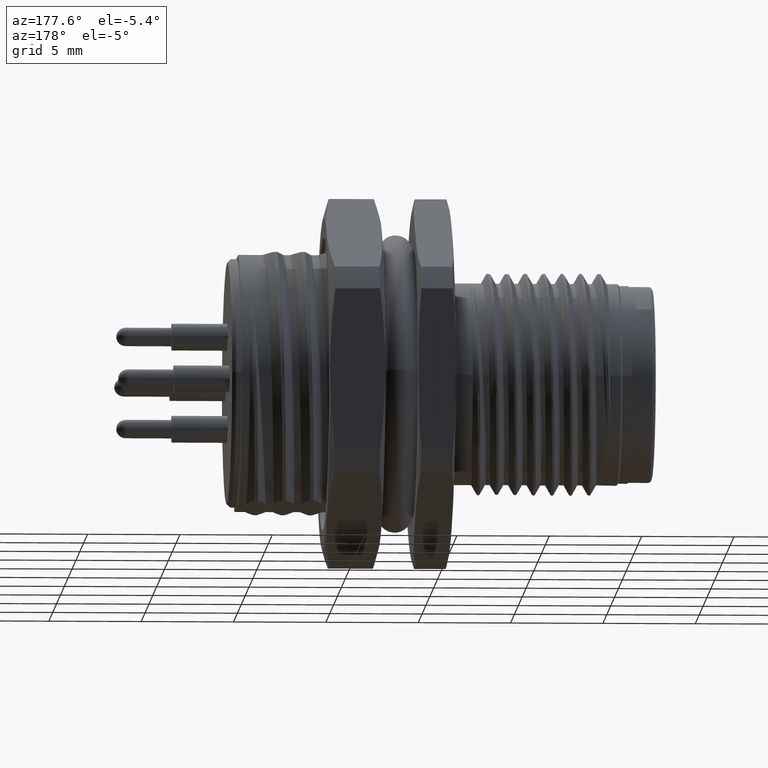
[diagram: clean part render]
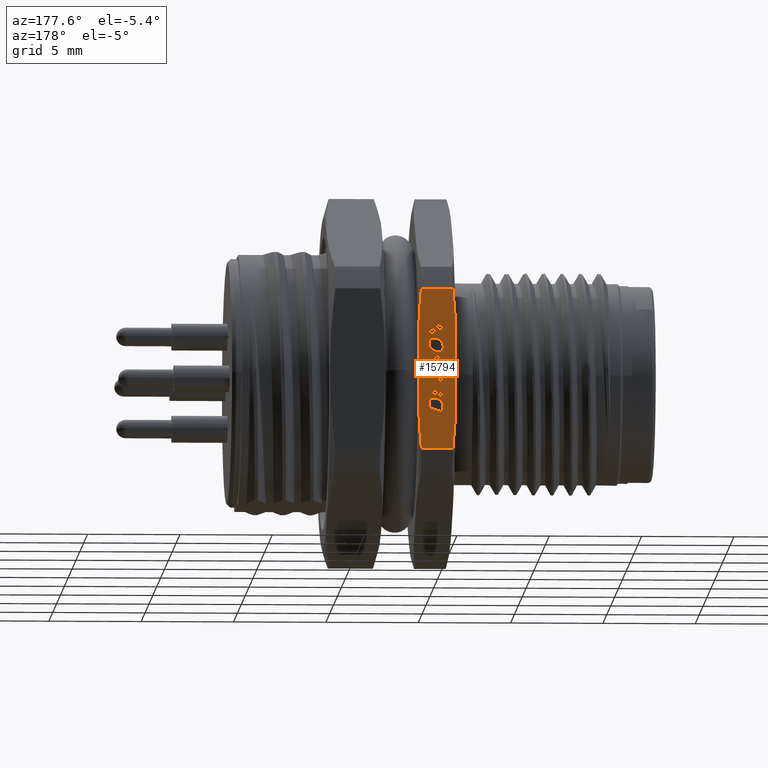
[diagram: same view with one face highlighted and labeled with its STEP entity id]
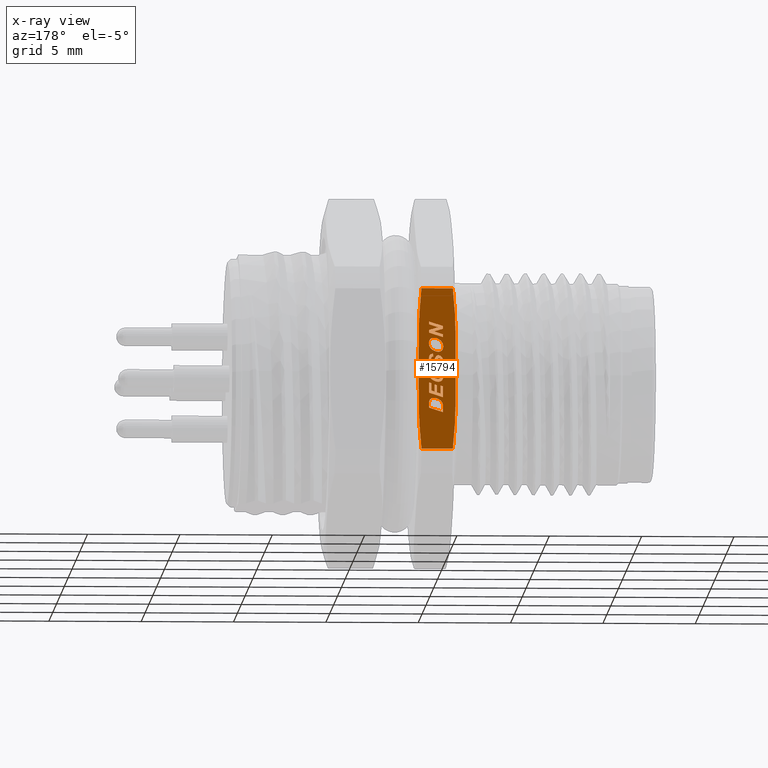
[diagram: x-ray of the same camera — body ghosted, the highlighted face saturated]
A machine part, auxiliary view. The second image highlights one B-rep face of the part: STEP entity #15794.
The next image is the same camera in x-ray: the body ghosted, the highlighted face saturated — about 0% of this face is hidden behind the body in this view.
In plain terms, the highlighted planar face has unit normal (0, 1, 0).
Its self-contained STEP definition (entity closure, byte-faithful):
#750=DIRECTION('',(0.E0,1.360991816649E-14,-1.E0));
#751=VECTOR('',#750,2.088308620428E0);
#752=CARTESIAN_POINT('',(9.399999999999E0,9.E0,1.044154310214E0));
#753=LINE('',#752,#751);
#754=DIRECTION('',(1.E0,-3.473007529869E-13,6.747258604716E-14));
#755=VECTOR('',#754,1.698097299268E0);
#756=CARTESIAN_POINT('',(9.550951350363E0,9.E0,-4.358898943541E0));
#757=LINE('',#756,#755);
#758=DIRECTION('',(0.E0,0.E0,1.E0));
#759=VECTOR('',#758,2.088308620429E0);
#760=CARTESIAN_POINT('',(1.14E1,9.E0,-1.044154310215E0));
#761=LINE('',#760,#759);
#762=DIRECTION('',(2.835517997339E-1,0.E0,9.589569212784E-1));
#763=VECTOR('',#762,5.729549788932E-2);
#764=CARTESIAN_POINT('',(1.009483605991E1,9.E0,-1.953522844802E0));
#765=LINE('',#764,#763);
#766=DIRECTION('',(3.994956688369E-1,0.E0,9.167350820060E-1));
#767=VECTOR('',#766,5.300213584576E-2);
#768=CARTESIAN_POINT('',(1.011108230145E1,9.E0,-1.898578930543E0));
#769=LINE('',#768,#767);
#770=DIRECTION('',(5.266034246408E-1,0.E0,8.501110710705E-1));
#771=VECTOR('',#770,4.963409965940E-2);
#772=CARTESIAN_POINT('',(1.013225642516E1,9.E0,-1.849990013192E0));
#773=LINE('',#772,#771);
#774=DIRECTION('',(6.450933525349E-1,0.E0,7.641037668506E-1));
#775=VECTOR('',#774,6.373388524035E-2);
#776=CARTESIAN_POINT('',(1.015839391202E1,9.E0,-1.807795515569E0));
#777=LINE('',#776,#775);
#778=DIRECTION('',(7.460720797650E-1,0.E0,6.658651904066E-1));
#779=VECTOR('',#778,6.660056318599E-2);
#780=CARTESIAN_POINT('',(1.019950821772E1,9.E0,-1.759096213780E0));
#781=LINE('',#780,#779);
#782=DIRECTION('',(8.245520886196E-1,0.E0,5.657860489205E-1));
#783=VECTOR('',#782,7.075142974582E-2);
#784=CARTESIAN_POINT('',(1.024919703841E1,9.E0,-1.714749217093E0));
#785=LINE('',#784,#783);
#786=DIRECTION('',(8.935230390812E-1,0.E0,4.490173478064E-1));
#787=VECTOR('',#786,7.339955921819E-2);
#788=CARTESIAN_POINT('',(1.030753527758E1,9.E0,-1.674719045202E0));
#789=LINE('',#788,#787);
#790=DIRECTION('',(9.505576247855E-1,0.E0,3.105482280776E-1));
#791=VECTOR('',#790,7.545708698751E-2);
#792=CARTESIAN_POINT('',(1.037311947480E1,9.E0,-1.641761369792E0));
#793=LINE('',#792,#791);
#794=DIRECTION('',(9.845840834267E-1,0.E0,1.749119283034E-1));
#795=VECTOR('',#794,7.904358580447E-2);
#796=CARTESIAN_POINT('',(1.044484578418E1,9.E0,-1.618328305132E0));
#797=LINE('',#796,#795);
#798=DIRECTION('',(9.604342298166E-1,0.E0,-2.785068943430E-1));
#799=VECTOR('',#798,2.900389337982E-2);
#800=CARTESIAN_POINT('',(1.065655548327E1,9.E0,-1.610435809083E0));
#801=LINE('',#800,#799);
#802=DIRECTION('',(9.236222574367E-1,0.E0,-3.833039597599E-1));
#803=VECTOR('',#802,2.754340114210E-2);
#804=CARTESIAN_POINT('',(1.068441181527E1,9.E0,-1.618513593352E0));
#805=LINE('',#804,#803);
#806=DIRECTION('',(8.742559377950E-1,0.E0,-4.854652976579E-1));
#807=VECTOR('',#806,2.638407105134E-2);
#808=CARTESIAN_POINT('',(1.070985151361E1,9.E0,-1.629071088075E0));
#809=LINE('',#808,#807);
#810=DIRECTION('',(8.116603889126E-1,0.E0,-5.841296200933E-1));
#811=VECTOR('',#810,2.550456724679E-2);
#812=CARTESIAN_POINT('',(1.073291794439E1,9.E0,-1.641879638982E0));
#813=LINE('',#812,#811);
#814=DIRECTION('',(7.335315204385E-1,0.E0,-6.796554336745E-1));
#815=VECTOR('',#814,2.509853643065E-2);
#816=CARTESIAN_POINT('',(1.075361899136E1,9.E0,-1.656777612158E0));
#817=LINE('',#816,#815);
#818=DIRECTION('',(6.457992284286E-1,0.E0,-7.635072734173E-1));
#819=VECTOR('',#818,2.471727256454E-2);
#820=CARTESIAN_POINT('',(1.077202955895E1,9.E0,-1.673835968821E0));
#821=LINE('',#820,#819);
#822=DIRECTION('',(5.432911665261E-1,0.E0,-8.395443456868E-1));
#823=VECTOR('',#822,2.459173795747E-2);
#824=CARTESIAN_POINT('',(1.078799195450E1,9.E0,-1.692707786203E0));
#825=LINE('',#824,#823);
#826=DIRECTION('',(4.358180039155E-1,0.E0,-9.000348145839E-1));
#827=VECTOR('',#826,2.484870591315E-2);
#828=CARTESIAN_POINT('',(1.080135242850E1,9.E0,-1.713353640756E0));
#829=LINE('',#828,#827);
#830=DIRECTION('',(3.266162290134E-1,0.E0,-9.451570445937E-1));
#831=VECTOR('',#830,2.602323598950E-2);
#832=CARTESIAN_POINT('',(1.081218194191E1,9.E0,-1.735718341175E0));
#833=LINE('',#832,#831);
#834=DIRECTION('',(-9.522443479272E-1,0.E0,-3.053370299207E-1));
#835=VECTOR('',#834,7.875908334372E-1);
#836=CARTESIAN_POINT('',(1.083365951378E1,9.E0,-2.126578236898E0));
#837=LINE('',#836,#835);
#838=DIRECTION('',(9.552032251783E-1,0.E0,2.959506692154E-1));
#839=VECTOR('',#838,6.192849328875E-2);
#840=CARTESIAN_POINT('',(1.044751078286E1,9.E0,-5.542684659994E-1));
#841=LINE('',#840,#839);
#842=DIRECTION('',(9.075311587553E-1,0.E0,4.199847567332E-1));
#843=VECTOR('',#842,6.150220090109E-2);
#844=CARTESIAN_POINT('',(1.050666507938E1,9.E0,-5.359406869671E-1));
#845=LINE('',#844,#843);
#846=DIRECTION('',(8.395468585380E-1,0.E0,5.432872834137E-1));
#847=VECTOR('',#846,5.901623879323E-2);
#848=CARTESIAN_POINT('',(1.056248024303E1,9.E0,-5.101107000831E-1));
#849=LINE('',#848,#847);
#850=DIRECTION('',(7.348034448872E-1,0.E0,6.782801024518E-1));
#851=VECTOR('',#850,5.454176865516E-2);
#852=CARTESIAN_POINT('',(1.061202714091E1,9.E0,-4.780479280318E-1));
#853=LINE('',#852,#851);
#854=DIRECTION('',(5.903606303101E-1,0.E0,8.071395952249E-1));
#855=VECTOR('',#854,5.199329076809E-2);
#856=CARTESIAN_POINT('',(1.065210462041E1,9.E0,-4.410533316005E-1));
#857=LINE('',#856,#855);
#858=DIRECTION('',(4.283863764946E-1,0.E0,9.035956576002E-1));
#859=VECTOR('',#858,5.026507539628E-2);
#860=CARTESIAN_POINT('',(1.068279941232E1,9.E0,-3.990874879355E-1));
#861=LINE('',#860,#859);
#862=DIRECTION('',(2.642361754130E-1,0.E0,9.644580051009E-1));
#863=VECTOR('',#862,4.889162369731E-2);
#864=CARTESIAN_POINT('',(1.070433228583E1,9.E0,-3.536681840785E-1));
#865=LINE('',#864,#863);
#866=DIRECTION('',(-2.987326461369E-1,0.E0,9.543368410221E-1));
#867=VECTOR('',#866,3.580283401192E-2);
#868=CARTESIAN_POINT('',(1.071800025947E1,9.E0,-2.177453693757E-1));
#869=LINE('',#868,#867);
#870=DIRECTION('',(-5.296314653922E-1,0.E0,8.482278649434E-1));
#871=VECTOR('',#870,3.375621932612E-2);
#872=CARTESIAN_POINT('',(1.070730478413E1,9.E0,-1.835774058652E-1));
#873=LINE('',#872,#871);
#874=DIRECTION('',(-7.393745554949E-1,0.E0,6.732943388197E-1));
#875=VECTOR('',#874,3.376721816620E-2);
#876=CARTESIAN_POINT('',(1.068942642822E1,9.E0,-1.549444400176E-1));
#877=LINE('',#876,#875);
#878=DIRECTION('',(-8.848731589554E-1,0.E0,4.658320432949E-1));
#879=VECTOR('',#878,3.606056066545E-2);
#880=CARTESIAN_POINT('',(1.066445980630E1,9.E0,-1.322091631886E-1));
#881=LINE('',#880,#879);
#882=DIRECTION('',(-9.624955087596E-1,0.E0,2.712976144709E-1));
#883=VECTOR('',#882,4.032434334233E-2);
#884=CARTESIAN_POINT('',(1.063255078407E1,9.E0,-1.154109985315E-1));
#885=LINE('',#884,#883);
#886=DIRECTION('',(1.120296799933E-1,0.E0,9.937048610129E-1));
#887=VECTOR('',#886,1.464600850552E-1);
#888=CARTESIAN_POINT('',(1.059373878471E1,9.E0,-1.044711003776E-1));
#889=LINE('',#888,#887);
#890=DIRECTION('',(9.780856665250E-1,0.E0,-2.082028552599E-1));
#891=VECTOR('',#890,7.248289720014E-2);
#892=CARTESIAN_POINT('',(1.061014666117E1,9.E0,4.106699808609E-2));
#893=LINE('',#892,#891);
#894=DIRECTION('',(9.013120418879E-1,0.E0,-4.331704089015E-1));
#895=VECTOR('',#894,6.504520631750E-2);
#896=CARTESIAN_POINT('',(1.068104114399E1,9.E0,2.597585193151E-2));
#897=LINE('',#896,#895);
#898=DIRECTION('',(7.470374444137E-1,0.E0,-6.647819617317E-1));
#899=VECTOR('',#898,6.201827823461E-2);
#900=CARTESIAN_POINT('',(1.073966717171E1,9.E0,-2.199806686118E-3));
#901=LINE('',#900,#899);
#902=DIRECTION('',(5.257384977877E-1,0.E0,-8.506462437135E-1));
#903=VECTOR('',#902,6.389561900321E-2);
#904=CARTESIAN_POINT('',(1.078599714779E1,9.E0,-4.342843935414E-2));
#905=LINE('',#904,#903);
#906=DIRECTION('',(2.866987525862E-1,0.E0,-9.580207854037E-1));
#907=VECTOR('',#906,7.021102316265E-2);
#908=CARTESIAN_POINT('',(1.081958953454E1,9.E0,-9.778100764897E-2));
#909=LINE('',#908,#907);
#910=DIRECTION('',(-2.739749531965E-1,0.E0,-9.617368273187E-1));
#911=VECTOR('',#910,8.095415746570E-2);
#912=CARTESIAN_POINT('',(1.083902904357E1,9.E0,-3.289105046804E-1));
#913=LINE('',#912,#911);
#914=DIRECTION('',(-4.568734579640E-1,0.E0,-8.895316989338E-1));
#915=VECTOR('',#914,8.091299593354E-2);
#916=CARTESIAN_POINT('',(1.081684963207E1,9.E0,-4.067670992397E-1));
#917=LINE('',#916,#915);
#918=DIRECTION('',(-6.135847324810E-1,0.E0,-7.896288850253E-1));
#919=VECTOR('',#918,8.207344480445E-2);
#920=CARTESIAN_POINT('',(1.077988263182E1,9.E0,-4.787417739783E-1));
#921=LINE('',#920,#919);
#922=DIRECTION('',(-7.416978786210E-1,0.E0,-6.707341178508E-1));
#923=VECTOR('',#922,8.410843115290E-2);
#924=CARTESIAN_POINT('',(1.072952361915E1,9.E0,-5.435493366894E-1));
#925=LINE('',#924,#923);
#926=DIRECTION('',(-8.401449540212E-1,0.E0,-5.423619236568E-1));
#927=VECTOR('',#926,8.862087967418E-2);
#928=CARTESIAN_POINT('',(1.066714057419E1,9.E0,-5.999637310625E-1));
#929=LINE('',#928,#927);
#930=DIRECTION('',(-9.060540321694E-1,0.E0,-4.231620148236E-1));
#931=VECTOR('',#930,7.491239428238E-2);
#932=CARTESIAN_POINT('',(1.059268618931E1,9.E0,-6.480283218388E-1));
#933=LINE('',#932,#931);
#934=DIRECTION('',(-9.528021833571E-1,0.E0,-3.035918302425E-1));
#935=VECTOR('',#934,7.335534959025E-2);
#936=CARTESIAN_POINT('',(1.052481151241E1,9.E0,-6.797284015386E-1));
#937=LINE('',#936,#935);
#938=DIRECTION('',(-9.844118374736E-1,0.E0,-1.758787486931E-1));
#939=VECTOR('',#938,7.297076250939E-2);
#940=CARTESIAN_POINT('',(1.045491837516E1,9.E0,-7.019984863788E-1));
#941=LINE('',#940,#939);
#942=DIRECTION('',(-9.590130822649E-1,0.E0,2.833617970806E-1));
#943=VECTOR('',#942,8.670511352966E-2);
#944=CARTESIAN_POINT('',(1.028281330570E1,9.E0,-7.147483708471E-1));
#945=LINE('',#944,#943);
#946=DIRECTION('',(-8.031492126231E-1,0.E0,5.957779303254E-1));
#947=VECTOR('',#946,8.203184587013E-2);
#948=CARTESIAN_POINT('',(1.019966196753E1,9.E0,-6.901794540612E-1));
#949=LINE('',#948,#947);
#950=DIRECTION('',(-5.510198487374E-1,0.E0,8.344921367499E-1));
#951=VECTOR('',#950,6.337510973436E-2);
#952=CARTESIAN_POINT('',(1.013377815511E1,9.E0,-6.413066907080E-1));
#953=LINE('',#952,#951);
#954=DIRECTION('',(-2.913841274881E-1,0.E0,9.566061311992E-1));
#955=VECTOR('',#954,7.190973321520E-2);
#956=CARTESIAN_POINT('',(1.009885721173E1,9.E0,-5.884206599690E-1));
#957=LINE('',#956,#955);
#958=DIRECTION('',(1.471967669923E-1,0.E0,9.891072296708E-1));
#959=VECTOR('',#958,6.018040460882E-2);
#960=CARTESIAN_POINT('',(1.007387876282E1,9.E0,-3.752483655321E-1));
#961=LINE('',#960,#959);
#962=DIRECTION('',(2.404447302700E-1,0.E0,9.706628311033E-1));
#963=VECTOR('',#962,6.123865382637E-2);
#964=CARTESIAN_POINT('',(1.008273712382E1,9.E0,-3.157234922490E-1));
#965=LINE('',#964,#963);
#966=DIRECTION('',(3.194920736669E-1,0.E0,9.475889482598E-1));
#967=VECTOR('',#966,5.974684684446E-2);
#968=CARTESIAN_POINT('',(1.009746163542E1,9.E0,-2.562814071530E-1));
#969=LINE('',#968,#967);
#970=DIRECTION('',(3.911331040835E-1,0.E0,9.203341213331E-1));
#971=VECTOR('',#970,5.536500242350E-2);
#972=CARTESIAN_POINT('',(1.011655027941E1,9.E0,-1.996659553898E-1));
#973=LINE('',#972,#971);
#974=DIRECTION('',(4.713649150766E-1,0.E0,8.819382726896E-1));
#975=VECTOR('',#974,5.136084180215E-2);
#976=CARTESIAN_POINT('',(1.013820536467E1,9.E0,-1.487116545317E-1));
#977=LINE('',#976,#975);
#978=DIRECTION('',(9.520540401052E-1,0.E0,3.059299016431E-1));
#979=VECTOR('',#978,3.380335229533E-1);
#980=CARTESIAN_POINT('',(1.016241506350E1,9.E0,-1.034145624289E-1));
#981=LINE('',#980,#979);
#982=DIRECTION('',(-9.523890220779E-1,0.E0,-3.048854713256E-1));
#983=VECTOR('',#982,1.316448892139E-1);
#984=CARTESIAN_POINT('',(1.048424124472E1,9.E0,-3.356400202463E-1));
#985=LINE('',#984,#983);
#986=DIRECTION('',(-9.529240086712E-1,0.E0,-3.032092242958E-1));
#987=VECTOR('',#986,1.169133709671E-1);
#988=CARTESIAN_POINT('',(1.035886409742E1,9.E0,-1.843895209977E-1));
#989=LINE('',#988,#987);
#990=DIRECTION('',(-4.045698487592E-1,0.E0,-9.145071008335E-1));
#991=VECTOR('',#990,3.079242290989E-2);
#992=CARTESIAN_POINT('',(1.024745453929E1,9.E0,-2.198387335185E-1));
#993=LINE('',#992,#991);
#994=DIRECTION('',(-3.367878916986E-1,0.E0,-9.415805414330E-1));
#995=VECTOR('',#994,3.318538706180E-2);
#996=CARTESIAN_POINT('',(1.023499685341E1,9.E0,-2.479986229214E-1));
#997=LINE('',#996,#995);
#998=DIRECTION('',(-2.772450063977E-1,0.E0,-9.607992539691E-1));
#999=VECTOR('',#998,3.567690935878E-2);
#1000=CARTESIAN_POINT('',(1.022382041687E1,9.E0,-2.792453376387E-1));
#1001=LINE('',#1000,#999);
#1002=DIRECTION('',(3.502593615589E-1,0.E0,-9.366527529668E-1));
#1003=VECTOR('',#1002,4.300684467892E-2);
#1004=CARTESIAN_POINT('',(1.020479879190E1,9.E0,-4.672144720966E-1));
#1005=LINE('',#1004,#1003);
#1006=DIRECTION('',(6.391591818048E-1,0.E0,-7.690744699407E-1));
#1007=VECTOR('',#1006,3.935772664877E-2);
#1008=CARTESIAN_POINT('',(1.021986234186E1,9.E0,-5.074969515615E-1));
#1009=LINE('',#1008,#1007);
#1010=DIRECTION('',(8.734735882019E-1,0.E0,-4.868715340968E-1));
#1011=VECTOR('',#1010,4.085047237841E-2);
#1012=CARTESIAN_POINT('',(1.024501819422E1,9.E0,-5.377659743220E-1));
#1013=LINE('',#1012,#1011);
#1014=DIRECTION('',(9.810992403581E-1,0.E0,-1.935052468766E-1));
#1015=VECTOR('',#1014,4.636742195405E-2);
#1016=CARTESIAN_POINT('',(1.028070000291E1,9.E0,-5.576549064774E-1));
#1017=LINE('',#1016,#1015);
#1018=CARTESIAN_POINT('',(1.038387634314E1,9.E0,-5.654822414184E-1));
#1019=CARTESIAN_POINT('',(1.040512190367E1,9.E0,-5.617873030010E-1));
#1020=CARTESIAN_POINT('',(1.042626522233E1,9.E0,-5.579634044168E-1));
#1021=CARTESIAN_POINT('',(1.044751078286E1,9.E0,-5.542684659994E-1));
#1023=DIRECTION('',(9.520042456663E-1,0.E0,3.060848186915E-1));
#1024=VECTOR('',#1023,1.788357701502E-1);
#1025=CARTESIAN_POINT('',(1.053803400582E1,9.E0,-1.255033010643E0));
#1026=LINE('',#1025,#1024);
#1027=DIRECTION('',(9.527276799398E-1,0.E0,3.038255550091E-1));
#1028=VECTOR('',#1027,1.315980945549E-1);
#1029=CARTESIAN_POINT('',(1.070828641828E1,9.E0,-7.986756483951E-1));
#1030=LINE('',#1029,#1028);
#1031=DIRECTION('',(-9.523777518058E-1,0.E0,-3.049206747095E-1));
#1032=VECTOR('',#1031,7.875026464843E-1);
#1033=CARTESIAN_POINT('',(1.083366356559E1,9.E0,-1.314680095348E0));
#1034=LINE('',#1033,#1032);
#1035=DIRECTION('',(9.516039345587E-1,0.E0,3.073271086846E-1));
#1036=VECTOR('',#1035,1.317534982325E-1);
#1037=CARTESIAN_POINT('',(1.008366356559E1,9.E0,-9.689517149207E-1));
#1038=LINE('',#1037,#1036);
#1039=DIRECTION('',(9.462054668623E-1,0.E0,3.235663988735E-1));
#1040=VECTOR('',#1039,2.151923157719E-1);
#1041=CARTESIAN_POINT('',(1.020904071290E1,9.E0,-1.364830165827E0));
#1042=LINE('',#1041,#1040);
#1043=DIRECTION('',(9.527276799398E-1,0.E0,3.038255550091E-1));
#1044=VECTOR('',#1043,1.315980945549E-1);
#1045=CARTESIAN_POINT('',(1.041265685851E1,9.E0,-9.068406890447E-1));
#1046=LINE('',#1045,#1044);
#1047=DIRECTION('',(-9.623648498802E-1,0.E0,2.717607324745E-1));
#1048=VECTOR('',#1047,4.205443523299E-2);
#1049=CARTESIAN_POINT('',(1.023414531543E1,9.E0,1.268949346972E-1));
#1050=LINE('',#1049,#1048);
#1051=DIRECTION('',(-8.720759643720E-1,0.E0,4.893705266612E-1));
#1052=VECTOR('',#1051,4.098827046003E-2);
#1053=CARTESIAN_POINT('',(1.019367360518E1,9.E0,1.383236788199E-1));
#1054=LINE('',#1053,#1052);
#1055=DIRECTION('',(-7.079876211215E-1,0.E0,7.062248426236E-1));
#1056=VECTOR('',#1055,4.249189342201E-2);
#1057=CARTESIAN_POINT('',(1.015792871969E1,9.E0,1.583821303218E-1));
#1058=LINE('',#1057,#1056);
#1059=DIRECTION('',(-5.222125926681E-1,0.E0,8.528153422980E-1));
#1060=VECTOR('',#1059,4.682790559755E-2);
#1061=CARTESIAN_POINT('',(1.012784498515E1,9.E0,1.883909610666E-1));
#1062=LINE('',#1061,#1060);
#1063=DIRECTION('',(-3.515611166086E-1,0.E0,9.361649327383E-1));
#1064=VECTOR('',#1063,5.132516704791E-2);
#1065=CARTESIAN_POINT('',(1.010339086316E1,9.E0,2.283265174078E-1));
#1066=LINE('',#1065,#1064);
#1067=DIRECTION('',(-1.943188251122E-1,0.E0,9.809384252883E-1));
#1068=VECTOR('',#1067,5.569006997639E-2);
#1069=CARTESIAN_POINT('',(1.008534693012E1,9.E0,2.763753389650E-1));
#1070=LINE('',#1069,#1068);
#1071=DIRECTION('',(2.964321468862E-1,0.E0,9.550539159087E-1));
#1072=VECTOR('',#1071,7.907694900855E-2);
#1073=CARTESIAN_POINT('',(1.007872385643E1,9.E0,4.797312922280E-1));
#1074=LINE('',#1073,#1072);
#1075=DIRECTION('',(5.241946647292E-1,0.E0,8.515984696260E-1));
#1076=VECTOR('',#1075,7.464285004889E-2);
#1077=CARTESIAN_POINT('',(1.010216480619E1,9.E0,5.552540420367E-1));
#1078=LINE('',#1077,#1076);
#1079=DIRECTION('',(7.129511479179E-1,0.E0,7.012137054298E-1));
#1080=VECTOR('',#1079,7.019775567819E-2);
#1081=CARTESIAN_POINT('',(1.014129218995E1,9.E0,6.188197789068E-1));
#1082=LINE('',#1081,#1080);
#1083=DIRECTION('',(8.670088385447E-1,0.E0,4.982927592142E-1));
#1084=VECTOR('',#1083,6.519970559260E-2);
#1085=CARTESIAN_POINT('',(1.019133976044E1,9.E0,6.680434072788E-1));
#1086=LINE('',#1085,#1084);
#1087=DIRECTION('',(9.700919156353E-1,0.E0,2.427378734746E-1));
#1088=VECTOR('',#1087,6.472361276767E-2);
#1089=CARTESIAN_POINT('',(1.024786848146E1,9.E0,7.005319484785E-1));
#1090=LINE('',#1089,#1088);
#1091=CARTESIAN_POINT('',(1.036091477109E1,9.E0,7.160561714517E-1));
#1092=CARTESIAN_POINT('',(1.037558692795E1,9.E0,7.118015361916E-1));
#1093=CARTESIAN_POINT('',(1.039023412876E1,9.E0,7.075383128677E-1));
#1094=CARTESIAN_POINT('',(1.040490628562E1,9.E0,7.032836776076E-1));
#1096=DIRECTION('',(8.304049767982E-1,0.E0,-5.571602772173E-1));
#1097=VECTOR('',#1096,4.507228530310E-2);
#1098=CARTESIAN_POINT('',(1.040490628562E1,9.E0,7.032836776076E-1));
#1099=LINE('',#1098,#1097);
#1100=DIRECTION('',(6.334882714517E-1,0.E0,-7.737522923605E-1));
#1101=VECTOR('',#1100,4.027636074422E-2);
#1102=CARTESIAN_POINT('',(1.044233453565E1,9.E0,6.781711906333E-1));
#1103=LINE('',#1102,#1101);
#1104=DIRECTION('',(5.044127229654E-1,0.E0,-8.634626829867E-1));
#1105=VECTOR('',#1104,5.971926630098E-2);
#1106=CARTESIAN_POINT('',(1.046784913780E1,9.E0,6.470072641795E-1));
#1107=LINE('',#1106,#1105);
#1108=DIRECTION('',(4.351478975647E-1,0.E0,-9.003589879848E-1));
#1109=VECTOR('',#1108,1.332634643428E-1);
#1110=CARTESIAN_POINT('',(1.049797229553E1,9.E0,5.954419062733E-1));
#1111=LINE('',#1110,#1109);
#1112=DIRECTION('',(4.909788199470E-1,0.E0,-8.711715091550E-1));
#1113=VECTOR('',#1112,3.993468839461E-2);
#1114=CARTESIAN_POINT('',(1.055596161186E1,9.E0,4.754569483823E-1));
#1115=LINE('',#1114,#1113);
#1116=DIRECTION('',(5.969976225036E-1,0.E0,-8.022430047841E-1));
#1117=VECTOR('',#1116,2.692929070791E-2);
#1118=CARTESIAN_POINT('',(1.057556869804E1,9.E0,4.406669856259E-1));
#1119=LINE('',#1118,#1117);
#1120=DIRECTION('',(7.788796563496E-1,0.E0,-6.271734057857E-1));
#1121=VECTOR('',#1120,1.956779025697E-2);
#1122=CARTESIAN_POINT('',(1.059164542057E1,9.E0,4.190631505317E-1));
#1123=LINE('',#1122,#1121);
#1124=DIRECTION('',(8.597784782509E-1,0.E0,5.106671796156E-1));
#1125=VECTOR('',#1124,2.198630957648E-2);
#1126=CARTESIAN_POINT('',(1.066644278602E1,9.E0,4.052769073612E-1));
#1127=LINE('',#1126,#1125);
#1128=DIRECTION('',(6.908092717603E-1,0.E0,7.230370322812E-1));
#1129=VECTOR('',#1128,2.360900326222E-2);
#1130=CARTESIAN_POINT('',(1.068534614181E1,9.E0,4.165045940628E-1));
#1131=LINE('',#1130,#1129);
#1132=DIRECTION('',(4.672448495618E-1,0.E0,8.841279605113E-1));
#1133=VECTOR('',#1132,2.677169381605E-2);
#1134=CARTESIAN_POINT('',(1.070165546016E1,9.E0,4.335747777166E-1));
#1135=LINE('',#1134,#1133);
#1136=DIRECTION('',(-2.891861237989E-1,0.E0,9.572728899338E-1));
#1137=VECTOR('',#1136,3.304497704670E-2);
#1138=CARTESIAN_POINT('',(1.072098064255E1,9.E0,5.668207670992E-1));
#1139=LINE('',#1138,#1137);
#1140=DIRECTION('',(-5.534632558247E-1,0.E0,8.328735945220E-1));
#1141=VECTOR('',#1140,2.869847160368E-2);
#1142=CARTESIAN_POINT('',(1.071142449373E1,9.E0,5.984538277745E-1));
#1143=LINE('',#1142,#1141);
#1144=DIRECTION('',(-7.953823475527E-1,0.E0,6.061080111676E-1));
#1145=VECTOR('',#1144,2.749365727665E-2);
#1146=CARTESIAN_POINT('',(1.069554094420E1,9.E0,6.223560269764E-1));
#1147=LINE('',#1146,#1145);
#1148=DIRECTION('',(-9.407738917098E-1,0.E0,3.390346363974E-1));
#1149=VECTOR('',#1148,2.923287376735E-2);
#1150=CARTESIAN_POINT('',(1.067367297453E1,9.E0,6.390201529080E-1));
#1151=LINE('',#1150,#1149);
#1152=DIRECTION('',(9.373016049122E-1,0.E0,-3.485192985029E-1));
#1153=VECTOR('',#1152,5.859401072389E-2);
#1154=CARTESIAN_POINT('',(1.068379681567E1,9.E0,7.957977650552E-1));
#1155=LINE('',#1154,#1153);
#1156=DIRECTION('',(7.878591188894E-1,0.E0,-6.158555096635E-1));
#1157=VECTOR('',#1156,5.823946744994E-2);
#1158=CARTESIAN_POINT('',(1.073871707596E1,9.E0,7.753766215412E-1));
#1159=LINE('',#1158,#1157);
#1160=DIRECTION('',(5.583483733595E-1,0.E0,-8.296065898767E-1));
#1161=VECTOR('',#1160,6.150537259320E-2);
#1162=CARTESIAN_POINT('',(1.078460157147E1,9.E0,7.395095246323E-1));
#1163=LINE('',#1162,#1161);
#1164=DIRECTION('',(2.988022503737E-1,0.E0,-9.543150502699E-1));
#1165=VECTOR('',#1164,6.896344222387E-2);
#1166=CARTESIAN_POINT('',(1.081894299621E1,9.E0,6.884842622162E-1));
#1167=LINE('',#1166,#1165);
#1168=DIRECTION('',(-2.903681344213E-1,0.E0,-9.569150153032E-1));
#1169=VECTOR('',#1168,7.157753575305E-2);
#1170=CARTESIAN_POINT('',(1.083949423590E1,9.E0,4.614981287559E-1));
#1171=LINE('',#1170,#1169);
#1172=DIRECTION('',(-5.232000620291E-1,0.E0,-8.522098891076E-1));
#1173=VECTOR('',#1172,6.620239605034E-2);
#1174=CARTESIAN_POINT('',(1.081871040038E1,9.E0,3.930045100354E-1));
#1175=LINE('',#1174,#1173);
#1176=DIRECTION('',(-7.235544608812E-1,0.E0,-6.902672976021E-1));
#1177=VECTOR('',#1176,6.253273903106E-2);
#1178=CARTESIAN_POINT('',(1.078407330266E1,9.E0,3.365861734386E-1));
#1179=LINE('',#1178,#1177);
#1180=DIRECTION('',(-8.768133054464E-1,0.E0,-4.808309759076E-1));
#1181=VECTOR('',#1180,5.970470168061E-2);
#1182=CARTESIAN_POINT('',(1.073882746038E1,9.E0,2.934218686560E-1));
#1183=LINE('',#1182,#1181);
#1184=DIRECTION('',(-9.727748873001E-1,0.E0,-2.317520628566E-1));
#1185=VECTOR('',#1184,6.216088108753E-2);
#1186=CARTESIAN_POINT('',(1.068647758355E1,9.E0,2.647139986807E-1));
#1187=LINE('',#1186,#1185);
#1188=DIRECTION('',(-9.475249972041E-1,0.E0,3.196816849200E-1));
#1189=VECTOR('',#1188,3.011467612429E-2);
#1190=CARTESIAN_POINT('',(1.056079687851E1,9.E0,2.533443891556E-1));
#1191=LINE('',#1190,#1189);
#1192=DIRECTION('',(-8.671728367420E-1,0.E0,4.980073003650E-1));
#1193=VECTOR('',#1192,2.906814127751E-2);
#1194=CARTESIAN_POINT('',(1.053226247010E1,9.E0,2.629714995598E-1));
#1195=LINE('',#1194,#1193);
#1196=DIRECTION('',(-7.608419134590E-1,0.E0,6.489372717945E-1));
#1197=VECTOR('',#1196,2.874698561116E-2);
#1198=CARTESIAN_POINT('',(1.050705536757E1,9.E0,2.774476461241E-1));
#1199=LINE('',#1198,#1197);
#1200=DIRECTION('',(-6.320610215638E-1,0.E0,7.749186183205E-1));
#1201=VECTOR('',#1200,2.938979586951E-2);
#1202=CARTESIAN_POINT('',(1.048518345603E1,9.E0,2.961026365389E-1));
#1203=LINE('',#1202,#1201);
#1204=DIRECTION('',(-5.213727083225E-1,0.E0,8.533290684235E-1));
#1205=VECTOR('',#1204,3.506975594721E-2);
#1206=CARTESIAN_POINT('',(1.046660731163E1,9.E0,3.188773365468E-1));
#1207=LINE('',#1206,#1205);
#1208=DIRECTION('',(-4.648885091501E-1,0.E0,8.853692303554E-1));
#1209=VECTOR('',#1208,4.527530725219E-2);
#1210=CARTESIAN_POINT('',(1.044832289799E1,9.E0,3.488033787191E-1));
#1211=LINE('',#1210,#1209);
#1212=DIRECTION('',(-4.292285726254E-1,0.E0,9.031958992610E-1));
#1213=VECTOR('',#1212,1.088918263648E-1);
#1214=CARTESIAN_POINT('',(1.042727492790E1,9.E0,3.888887426551E-1));
#1215=LINE('',#1214,#1213);
#1216=DIRECTION('',(-4.778271201900E-1,0.E0,8.784538936171E-1));
#1217=VECTOR('',#1216,3.818427808385E-2);
#1218=CARTESIAN_POINT('',(1.038053544470E1,9.E0,4.872393936908E-1));
#1219=LINE('',#1218,#1217);
#1220=DIRECTION('',(-5.811102008487E-1,0.E0,8.138248794855E-1));
#1221=VECTOR('',#1220,2.331014361019E-2);
#1222=CARTESIAN_POINT('',(1.036228996107E1,9.E0,5.207825214485E-1));
#1223=LINE('',#1222,#1221);
#1224=DIRECTION('',(-7.724033892343E-1,0.E0,6.351322730734E-1));
#1225=VECTOR('',#1224,2.139574417077E-2);
#1226=CARTESIAN_POINT('',(1.034874419883E1,9.E0,5.397528962629E-1));
#1227=LINE('',#1226,#1225);
#1228=DIRECTION('',(-8.464829814281E-1,0.E0,-5.324157793985E-1));
#1229=VECTOR('',#1228,2.578268483660E-2);
#1230=CARTESIAN_POINT('',(1.026806491324E1,9.E0,5.547573116331E-1));
#1231=LINE('',#1230,#1229);
#1232=DIRECTION('',(-6.792950766890E-1,0.E0,-7.338652456590E-1));
#1233=VECTOR('',#1232,2.853593082856E-2);
#1234=CARTESIAN_POINT('',(1.024624030931E1,9.E0,5.410302033908E-1));
#1235=LINE('',#1234,#1233);
#1236=DIRECTION('',(-4.615053612109E-1,0.E0,-8.871374197798E-1));
#1237=VECTOR('',#1236,3.252898245731E-2);
#1238=CARTESIAN_POINT('',(1.022685599199E1,9.E0,5.200886755032E-1));
#1239=LINE('',#1238,#1237);
#1240=DIRECTION('',(-2.342309332541E-1,0.E0,-9.721809861887E-1));
#1241=VECTOR('',#1240,3.857630870749E-2);
#1242=CARTESIAN_POINT('',(1.021184369219E1,9.E0,4.912309979379E-1));
#1243=LINE('',#1242,#1241);
#1244=DIRECTION('',(3.146341205521E-1,0.E0,-9.492130267671E-1));
#1245=VECTOR('',#1244,4.231316800231E-2);
#1246=CARTESIAN_POINT('',(1.020421927293E1,9.E0,3.537746262773E-1));
#1247=LINE('',#1246,#1245);
#1248=DIRECTION('',(6.436682878786E-1,0.E0,-7.653046028735E-1));
#1249=VECTOR('',#1248,3.454969977162E-2);
#1250=CARTESIAN_POINT('',(1.021753243933E1,9.E0,3.136104160057E-1));
#1251=LINE('',#1250,#1249);
#1252=DIRECTION('',(9.120537521435E-1,0.E0,-4.100706685450E-1));
#1253=VECTOR('',#1252,2.341902790354E-2);
#1254=CARTESIAN_POINT('',(1.023977098543E1,9.E0,2.871693717426E-1));
#1255=LINE('',#1254,#1253);
#1256=DIRECTION('',(-9.725419510115E-1,0.E0,2.327276380722E-1));
#1257=VECTOR('',#1256,4.829470811157E-2);
#1258=CARTESIAN_POINT('',(1.028290769403E1,9.E0,9.164441453913E-1));
#1259=LINE('',#1258,#1257);
#1260=DIRECTION('',(-9.155951514377E-1,0.E0,4.021013785898E-1));
#1261=VECTOR('',#1260,4.852127344679E-2);
#1262=CARTESIAN_POINT('',(1.023593906438E1,9.E0,9.276836587415E-1));
#1263=LINE('',#1262,#1261);
#1264=DIRECTION('',(-8.030222423432E-1,0.E0,5.959490568011E-1));
#1265=VECTOR('',#1264,4.898535042315E-2);
#1266=CARTESIAN_POINT('',(1.019151322167E1,9.E0,9.471941296854E-1));
#1267=LINE('',#1266,#1265);
#1268=DIRECTION('',(-6.611589246770E-1,0.E0,7.502458772429E-1));
#1269=VECTOR('',#1268,5.186374003958E-2);
#1270=CARTESIAN_POINT('',(1.015217689573E1,9.E0,9.763869030671E-1));
#1271=LINE('',#1270,#1269);
#1272=DIRECTION('',(-4.790830524457E-1,0.E0,8.777695761755E-1));
#1273=VECTOR('',#1272,5.501813423447E-2);
#1274=CARTESIAN_POINT('',(1.011788672114E1,9.E0,1.015297460210E0));
#1275=LINE('',#1274,#1273);
#1276=DIRECTION('',(-2.682013989422E-1,0.E0,9.633628649712E-1));
#1277=VECTOR('',#1276,5.907548115846E-2);
#1278=CARTESIAN_POINT('',(1.009152846545E1,9.E0,1.063590704579E0));
#1279=LINE('',#1278,#1277);
#1280=DIRECTION('',(2.590866340011E-1,0.E0,9.658540863308E-1));
#1281=VECTOR('',#1280,7.700902455448E-2);
#1282=CARTESIAN_POINT('',(1.007703654969E1,9.E0,1.264490601707E0));
#1283=LINE('',#1282,#1281);
#1284=DIRECTION('',(4.277227664024E-1,0.E0,9.039099706835E-1));
#1285=VECTOR('',#1284,7.784648468337E-2);
#1286=CARTESIAN_POINT('',(1.009698855865E1,9.E0,1.338870082757E0));
#1287=LINE('',#1286,#1285);
#1288=DIRECTION('',(5.773151428037E-1,0.E0,8.165214179E-1));
#1289=VECTOR('',#1288,7.884404531526E-2);
#1290=CARTESIAN_POINT('',(1.013028527243E1,9.E0,1.409236296445E0));
#1291=LINE('',#1290,#1289);
#1292=DIRECTION('',(7.078662011923E-1,0.E0,7.063465447E-1));
#1293=VECTOR('',#1292,8.042041544618E-2);
#1294=CARTESIAN_POINT('',(1.017580313371E1,9.E0,1.473614148119E0));
#1295=LINE('',#1294,#1293);
#1296=DIRECTION('',(8.114180075287E-1,0.E0,5.844662668266E-1));
#1297=VECTOR('',#1296,8.421304863384E-2);
#1298=CARTESIAN_POINT('',(1.023273002769E1,9.E0,1.530418830693E0));
#1299=LINE('',#1298,#1297);
#1300=DIRECTION('',(8.854041366407E-1,0.E0,4.648220248864E-1));
#1301=VECTOR('',#1300,8.456727088841E-2);
#1302=CARTESIAN_POINT('',(1.030106201182E1,9.E0,1.579638516846E0));
#1303=LINE('',#1302,#1301);
#1304=DIRECTION('',(9.428002106316E-1,0.E0,3.333583099804E-1));
#1305=VECTOR('',#1304,8.122117992430E-2);
#1306=CARTESIAN_POINT('',(1.037593822329E1,9.E0,1.618947246939E0));
#1307=LINE('',#1306,#1305);
#1308=DIRECTION('',(9.824470936203E-1,0.E0,1.865414383913E-1));
#1309=VECTOR('',#1308,8.009450350843E-2);
#1310=CARTESIAN_POINT('',(1.045251356883E1,9.E0,1.646023002213E0));
#1311=LINE('',#1310,#1309);
#1312=CARTESIAN_POINT('',(1.061992588379E1,9.E0,1.661218748442E0));
#1313=CARTESIAN_POINT('',(1.064529919058E1,9.E0,1.654560514145E0));
#1314=CARTESIAN_POINT('',(1.067070379098E1,9.E0,1.647914988918E0));
#1315=CARTESIAN_POINT('',(1.069607709777E1,9.E0,1.641256754621E0));
#1317=DIRECTION('',(8.441929853294E-1,0.E0,-5.360393675101E-1));
#1318=VECTOR('',#1317,7.568523907361E-2);
#1319=CARTESIAN_POINT('',(1.069607709777E1,9.E0,1.641256754621E0));
#1320=LINE('',#1319,#1318);
#1321=DIRECTION('',(6.397297355928E-1,0.E0,-7.685999384585E-1));
#1322=VECTOR('',#1321,7.507102598024E-2);
#1323=CARTESIAN_POINT('',(1.075997004569E1,9.E0,1.600686486938E0));
#1324=LINE('',#1323,#1322);
#1325=DIRECTION('',(3.729029784637E-1,0.E0,-9.278703404317E-1));
#1326=VECTOR('',#1325,7.728083816159E-2);
#1327=CARTESIAN_POINT('',(1.080799521329E1,9.E0,1.542986900990E0));
#1328=LINE('',#1327,#1326);
#1329=DIRECTION('',(1.113896610148E-1,0.E0,-9.937768076480E-1));
#1330=VECTOR('',#1329,8.625036257476E-2);
#1331=CARTESIAN_POINT('',(1.083681346802E1,9.E0,1.471280303376E0));
#1332=LINE('',#1331,#1330);
#1333=DIRECTION('',(-2.168145792379E-1,0.E0,-9.762128037625E-1));
#1334=VECTOR('',#1333,6.484002242252E-2);
#1335=CARTESIAN_POINT('',(1.084174923463E1,9.E0,1.318275478020E0));
#1336=LINE('',#1335,#1334);
#1337=DIRECTION('',(-3.684307869864E-1,0.E0,-9.296551808066E-1));
#1338=VECTOR('',#1337,6.388055906614E-2);
#1339=CARTESIAN_POINT('',(1.082769097245E1,9.E0,1.254977817935E0));
#1340=LINE('',#1339,#1338);
#1341=DIRECTION('',(-4.994896068834E-1,0.E0,-8.663198789220E-1));
#1342=VECTOR('',#1341,6.303084718373E-2);
#1343=CARTESIAN_POINT('',(1.080415540780E1,9.E0,1.195590925246E0));
#1344=LINE('',#1343,#1342);
#1345=DIRECTION('',(-6.135946231837E-1,0.E0,-7.896211993102E-1));
#1346=VECTOR('',#1345,6.232829610558E-2);
#1347=CARTESIAN_POINT('',(1.077267215472E1,9.E0,1.140986049345E0));
#1348=LINE('',#1347,#1346);
#1349=DIRECTION('',(-7.168667405408E-1,0.E0,-6.972102095541E-1));
#1350=VECTOR('',#1349,6.277515274766E-2);
#1351=CARTESIAN_POINT('',(1.073442784736E1,9.E0,1.091770305423E0));
#1352=LINE('',#1351,#1350);
#1353=DIRECTION('',(-8.018262135225E-1,0.E0,-5.975572970923E-1));
#1354=VECTOR('',#1353,6.411322716109E-2);
#1355=CARTESIAN_POINT('',(1.068942642822E1,9.E0,1.048002828021E0));
#1356=LINE('',#1355,#1354);
#1357=DIRECTION('',(-8.668966118722E-1,0.E0,-4.984879781144E-1));
#1358=VECTOR('',#1357,6.591757291164E-2);
#1359=CARTESIAN_POINT('',(1.063801876205E1,9.E0,1.009691501291E0));
#1360=LINE('',#1359,#1358);
#1361=DIRECTION('',(-9.169978831970E-1,0.E0,-3.988920683746E-1));
#1362=VECTOR('',#1361,6.861863251018E-2);
#1363=CARTESIAN_POINT('',(1.058087504143E1,9.E0,9.768323836483E-1));
#1364=LINE('',#1363,#1362);
#1365=DIRECTION('',(-9.464195437924E-1,0.E0,-3.229396958069E-1));
#1366=VECTOR('',#1365,5.103980754307E-2);
#1367=CARTESIAN_POINT('',(1.051795190067E1,9.E0,9.494609553973E-1));
#1368=LINE('',#1367,#1366);
#1369=DIRECTION('',(-9.689719125750E-1,0.E0,-2.471708571835E-1));
#1370=VECTOR('',#1369,4.820005080021E-2);
#1371=CARTESIAN_POINT('',(1.046964682930E1,9.E0,9.329781754753E-1));
#1372=LINE('',#1371,#1370);
#1373=DIRECTION('',(9.523589895402E-1,0.E0,3.049792698561E-1));
#1374=VECTOR('',#1373,5.291709415201E-1);
#1375=CARTESIAN_POINT('',(1.008366356559E1,9.E0,1.853597222504E0));
#1376=LINE('',#1375,#1374);
#1377=DIRECTION('',(-9.602639155041E-1,0.E0,2.790935552475E-1));
#1378=VECTOR('',#1377,5.248147879172E-1);
#1379=CARTESIAN_POINT('',(1.058762426875E1,9.E0,2.014983389878E0));
#1380=LINE('',#1379,#1378);
#1381=DIRECTION('',(9.524475126373E-1,0.E0,3.047027004655E-1));
#1382=VECTOR('',#1381,7.874449668344E-1);
#1383=CARTESIAN_POINT('',(1.008366356559E1,9.E0,2.305349971660E0));
#1384=LINE('',#1383,#1382);
#1385=DIRECTION('',(-9.523067316496E-1,0.E0,-3.051424074999E-1));
#1386=VECTOR('',#1385,5.270017757940E-1);
#1387=CARTESIAN_POINT('',(1.083366356559E1,9.E0,2.402090210572E0));
#1388=LINE('',#1387,#1386);
#1389=DIRECTION('',(9.595673800043E-1,0.E0,-2.814790280496E-1));
#1390=VECTOR('',#1389,5.230141719464E-1);
#1391=CARTESIAN_POINT('',(1.033179622691E1,9.E0,2.241279619949E0));
#1392=LINE('',#1391,#1390);
#1393=DIRECTION('',(-9.524518714025E-1,0.E0,-3.046890753898E-1));
#1394=VECTOR('',#1393,7.874413632007E-1);
#1395=CARTESIAN_POINT('',(1.083366356559E1,9.E0,1.949813134826E0));
#1396=LINE('',#1395,#1394);
#1397=DIRECTION('',(1.E0,1.370373453051E-13,6.328823962563E-14));
#1398=VECTOR('',#1397,1.698097299268E0);
#1399=CARTESIAN_POINT('',(9.550951350363E0,9.E0,4.358898943541E0));
#1400=LINE('',#1399,#1398);
#1560=CARTESIAN_POINT('',(1.124904864963E1,9.E0,4.358898943541E0));
#1561=CARTESIAN_POINT('',(1.130064442511E1,9.E0,3.970285588536E0));
#1562=CARTESIAN_POINT('',(1.136320973243E1,9.E0,3.205016591477E0));
#1563=CARTESIAN_POINT('',(1.139458438714E1,9.E0,2.144771878362E0));
#1564=CARTESIAN_POINT('',(1.139903173112E1,9.E0,1.410798603250E0));
#1565=CARTESIAN_POINT('',(1.14E1,9.E0,1.044154310215E0));
#1591=CARTESIAN_POINT('',(1.14E1,9.E0,-1.044154310215E0));
#1592=CARTESIAN_POINT('',(1.139889157481E1,9.E0,-1.463870136319E0));
#1593=CARTESIAN_POINT('',(1.139385117563E1,9.E0,-2.269269390078E0));
#1594=CARTESIAN_POINT('',(1.135240180139E1,9.E0,-3.393546569762E0));
#1595=CARTESIAN_POINT('',(1.128997275746E1,8.999999999999E0,-4.050663342924E0));
#1596=CARTESIAN_POINT('',(1.124904864963E1,8.999999999999E0,-4.358898943541E0));
#4338=CARTESIAN_POINT('',(9.399999999999E0,9.E0,1.044154310214E0));
#4339=CARTESIAN_POINT('',(9.400976709512E0,9.E0,1.413994731778E0));
#4340=CARTESIAN_POINT('',(9.405493018688E0,9.E0,2.152221651700E0));
#4341=CARTESIAN_POINT('',(9.437187009446E0,9.E0,3.212032574952E0));
#4342=CARTESIAN_POINT('',(9.499750972047E0,9.E0,3.973263673785E0));
#4343=CARTESIAN_POINT('',(9.550951350363E0,9.E0,4.358898943541E0));
#4355=CARTESIAN_POINT('',(9.550951350363E0,9.E0,-4.358898943541E0));
#4356=CARTESIAN_POINT('',(9.509583875907E0,9.E0,-4.047323957261E0));
#4357=CARTESIAN_POINT('',(9.447081674683E0,9.E0,-3.385695635604E0));
#4358=CARTESIAN_POINT('',(9.406075798387E0,9.E0,-2.262024699694E0));
#4359=CARTESIAN_POINT('',(9.401100230137E0,9.E0,-1.460767000664E0));
#4360=CARTESIAN_POINT('',(9.399999999999E0,9.E0,-1.044154310214E0));
#4369=DIRECTION('',(-5.216147307223E-8,0.E0,-1.E0));
#4370=VECTOR('',#4369,2.643835306013E-1);
#4371=CARTESIAN_POINT('',(1.008368060795E1,9.E0,-2.102675352171E0));
#4372=LINE('',#4371,#4370);
#4377=DIRECTION('',(-2.802289410016E-4,0.E0,9.999999607359E-1));
#4378=VECTOR('',#4377,2.020353367007E-1);
#4379=CARTESIAN_POINT('',(1.083365951378E1,9.E0,-2.126578236898E0));
#4380=LINE('',#4379,#4378);
#4385=DIRECTION('',(-7.902612235458E-3,0.E0,9.999687738724E-1));
#4386=VECTOR('',#4385,4.956858932786E-2);
#4387=CARTESIAN_POINT('',(1.083360289763E1,9.E0,-1.924542908130E0));
#4388=LINE('',#4387,#4386);
#4393=DIRECTION('',(-2.605581358272E-2,0.E0,9.996604896556E-1));
#4394=VECTOR('',#4393,3.593545080033E-2);
#4395=CARTESIAN_POINT('',(1.083321117629E1,9.E0,-1.874975866637E0));
#4396=LINE('',#4395,#4394);
#4401=DIRECTION('',(-5.283716466133E-2,0.E0,9.986031414083E-1));
#4402=VECTOR('',#4401,2.231892574988E-2);
#4403=CARTESIAN_POINT('',(1.083227484888E1,9.E0,-1.839052616294E0));
#4404=LINE('',#4403,#4402);
#4409=DIRECTION('',(-1.387293965165E-1,0.E0,9.903303259732E-1));
#4410=VECTOR('',#4409,2.971329337044E-2);
#4411=CARTESIAN_POINT('',(1.083109558013E1,9.E0,-1.816764866927E0));
#4412=LINE('',#4411,#4410);
#4417=DIRECTION('',(-2.267579848629E-1,0.E0,9.739511365058E-1));
#4418=VECTOR('',#4417,2.774729081547E-2);
#4419=CARTESIAN_POINT('',(1.082697347287E1,9.E0,-1.787338891418E0));
#4420=LINE('',#4419,#4418);
#4461=DIRECTION('',(-9.834501933333E-1,0.E0,1.811786886824E-1));
#4462=VECTOR('',#4461,3.085456362255E-2);
#4463=CARTESIAN_POINT('',(1.065655548327E1,9.E0,-1.610435809083E0));
#4464=LINE('',#4463,#4462);
#4469=DIRECTION('',(-9.959057267203E-1,0.E0,9.039791748502E-2));
#4470=VECTOR('',#4469,3.293212053017E-2);
#4471=CARTESIAN_POINT('',(1.062621155671E1,9.E0,-1.604845619706E0));
#4472=LINE('',#4471,#4470);
#4477=DIRECTION('',(-9.999958867122E-1,0.E0,2.868197801141E-3));
#4478=VECTOR('',#4477,3.423808200843E-2);
#4479=CARTESIAN_POINT('',(1.059341426928E1,9.E0,-1.601868624592E0));
#4480=LINE('',#4479,#4478);
#4485=DIRECTION('',(-9.972109011827E-1,0.E0,-7.463523673487E-2));
#4486=VECTOR('',#4485,3.660758962871E-2);
#4487=CARTESIAN_POINT('',(1.055917632810E1,9.E0,-1.601770423001E0));
#4488=LINE('',#4487,#4486);
#4529=DIRECTION('',(-1.597785847872E-1,0.E0,-9.871528776453E-1));
#4530=VECTOR('',#4529,3.903356455656E-2);
#4531=CARTESIAN_POINT('',(1.009483605991E1,9.E0,-1.953522844802E0));
#4532=LINE('',#4531,#4530);
#4537=DIRECTION('',(-7.850226834598E-2,0.E0,-9.969139350338E-1));
#4538=VECTOR('',#4537,4.986167925932E-2);
#4539=CARTESIAN_POINT('',(1.008859933220E1,9.E0,-1.992054940378E0));
#4540=LINE('',#4539,#4538);
#4545=DIRECTION('',(-1.648809339336E-2,0.E0,-9.998640621486E-1));
#4546=VECTOR('',#4545,6.092089036957E-2);
#4547=CARTESIAN_POINT('',(1.008468507728E1,9.E0,-2.041762743256E0));
#4548=LINE('',#4547,#4546);
#4983=DIRECTION('',(-9.998030636884E-1,0.E0,-1.984524727204E-2));
#4984=VECTOR('',#4983,5.769666034193E-2);
#4985=CARTESIAN_POINT('',(1.038387634314E1,9.E0,-5.654822414184E-1));
#4986=LINE('',#4985,#4984);
#5009=DIRECTION('',(-9.556401611177E-2,0.E0,9.954232862580E-1));
#5010=VECTOR('',#5009,4.936676654881E-2);
#5011=CARTESIAN_POINT('',(1.020479879190E1,9.E0,-4.672144720966E-1));
#5012=LINE('',#5011,#5010);
#5017=DIRECTION('',(3.560965705067E-2,0.E0,9.993657750417E-1));
#5018=VECTOR('',#5017,3.467301530149E-2);
#5019=CARTESIAN_POINT('',(1.020008110542E1,9.E0,-4.180736431066E-1));
#5020=LINE('',#5019,#5018);
#5026=DIRECTION('',(1.368650883999E-1,0.E0,9.905896968863E-1));
#5027=VECTOR('',#5026,3.478096180582E-2);
#5028=CARTESIAN_POINT('',(1.020131579961E1,9.E0,-3.834226182968E-1));
#5029=LINE('',#5028,#5027);
#5034=DIRECTION('',(2.163095389260E-1,0.E0,9.763248349651E-1));
#5035=VECTOR('',#5034,3.630479229884E-2);
#5036=CARTESIAN_POINT('',(1.020607609902E1,9.E0,-3.489689558842E-1));
#5037=LINE('',#5036,#5035);
#5058=DIRECTION('',(2.691630979875E-13,0.E0,-1.E0));
#5059=VECTOR('',#5058,1.913871133442E-1);
#5060=CARTESIAN_POINT('',(1.035886409742E1,9.E0,-1.843895209977E-1));
#5061=LINE('',#5060,#5059);
#5070=DIRECTION('',(-1.693582869499E-13,0.E0,1.E0));
#5071=VECTOR('',#5070,3.356400202466E-1);
#5072=CARTESIAN_POINT('',(1.048424124472E1,9.E0,-3.356400202463E-1));
#5073=LINE('',#5072,#5071);
#5102=DIRECTION('',(-4.957544602212E-2,0.E0,-9.987703815951E-1));
#5103=VECTOR('',#5102,5.972051815967E-2);
#5104=CARTESIAN_POINT('',(1.007387876282E1,9.E0,-3.752483655321E-1));
#5105=LINE('',#5104,#5103);
#5110=DIRECTION('',(8.216286625475E-2,0.E0,-9.966189158394E-1));
#5111=VECTOR('',#5110,8.502338927368E-2);
#5112=CARTESIAN_POINT('',(1.007091809150E1,9.E0,-4.348954502435E-1));
#5113=LINE('',#5112,#5111);
#5134=DIRECTION('',(9.999996480907E-1,0.E0,-8.389389067756E-4));
#5135=VECTOR('',#5134,1.002718223387E-1);
#5136=CARTESIAN_POINT('',(1.028281330570E1,9.E0,-7.147483708471E-1));
#5137=LINE('',#5136,#5135);
#5174=DIRECTION('',(8.797597058004E-2,0.E0,9.961225971739E-1));
#5175=VECTOR('',#5174,8.402093262172E-2);
#5176=CARTESIAN_POINT('',(1.083902904357E1,9.E0,-3.289105046804E-1));
#5177=LINE('',#5176,#5175);
#5182=DIRECTION('',(-8.330502065664E-2,0.E0,9.965240958117E-1));
#5183=VECTOR('',#5182,8.045036561981E-2);
#5184=CARTESIAN_POINT('',(1.084642086667E1,9.E0,-2.452153550603E-1));
#5185=LINE('',#5184,#5183);
#5234=DIRECTION('',(8.904036735390E-2,0.E0,-9.960280181709E-1));
#5235=VECTOR('',#5234,3.993649099418E-2);
#5236=CARTESIAN_POINT('',(1.071800025947E1,9.E0,-2.177453693757E-1));
#5237=LINE('',#5236,#5235);
#5242=DIRECTION('',(-8.753586652993E-2,0.E0,-9.961613684895E-1));
#5243=VECTOR('',#5242,4.917981605947E-2);
#5244=CARTESIAN_POINT('',(1.072155621930E1,9.E0,-2.575232333534E-1));
#5245=LINE('',#5244,#5243);
#5518=DIRECTION('',(-2.791465585415E-13,0.E0,1.E0));
#5519=VECTOR('',#5518,3.881751857145E-1);
#5520=CARTESIAN_POINT('',(1.053803400582E1,9.E0,-1.255033010643E0));
#5521=LINE('',#5520,#5519);
#5526=DIRECTION('',(1.372196933922E-13,0.E0,-1.E0));
#5527=VECTOR('',#5526,3.883604741026E-1);
#5528=CARTESIAN_POINT('',(1.041265685851E1,9.E0,-9.068406890447E-1));
#5529=LINE('',#5528,#5527);
#5538=DIRECTION('',(-1.221227874126E-13,0.E0,1.E0));
#5539=VECTOR('',#5538,4.363698725771E-1);
#5540=CARTESIAN_POINT('',(1.020904071290E1,9.E0,-1.364830165827E0));
#5541=LINE('',#5540,#5539);
#5550=DIRECTION('',(7.883407910698E-14,0.E0,-1.E0));
#5551=VECTOR('',#5550,5.858542187285E-1);
#5552=CARTESIAN_POINT('',(1.008366356559E1,9.E0,-9.689517149207E-1));
#5553=LINE('',#5552,#5551);
#5562=DIRECTION('',(-5.111934906529E-14,0.E0,1.E0));
#5563=VECTOR('',#5562,5.559873110689E-1);
#5564=CARTESIAN_POINT('',(1.083366356559E1,9.E0,-1.314680095348E0));
#5565=LINE('',#5564,#5563);
#5574=DIRECTION('',(-1.769198450317E-13,0.E0,-1.E0));
#5575=VECTOR('',#5574,4.016184479659E-1);
#5576=CARTESIAN_POINT('',(1.070828641828E1,9.E0,-7.986756483951E-1));
#5577=LINE('',#5576,#5575);
#5638=DIRECTION('',(9.957393188648E-1,0.E0,-9.221284545330E-2));
#5639=VECTOR('',#5638,4.450507990448E-2);
#5640=CARTESIAN_POINT('',(1.023414531543E1,9.E0,1.268949346972E-1));
#5641=LINE('',#5640,#5639);
#5646=DIRECTION('',(9.976941119625E-1,0.E0,6.787089917954E-2));
#5647=VECTOR('',#5646,4.838510359411E-2);
#5648=CARTESIAN_POINT('',(1.027846077338E1,9.E0,1.227909946420E-1));
#5649=LINE('',#5648,#5647);
#5654=DIRECTION('',(5.195533363610E-2,0.E0,9.986494096062E-1));
#5655=VECTOR('',#5654,1.477595819457E-1);
#5656=CARTESIAN_POINT('',(1.032673430634E1,9.E0,1.260749351299E-1));
#5657=LINE('',#5656,#5655);
#5662=DIRECTION('',(-9.999397238625E-1,0.E0,-1.097946454720E-2));
#5663=VECTOR('',#5662,4.253697675846E-2);
#5664=CARTESIAN_POINT('',(1.033441120472E1,9.E0,2.736349544036E-1));
#5665=LINE('',#5664,#5663);
#5670=DIRECTION('',(-9.899240007327E-1,0.E0,1.415996919963E-1));
#5671=VECTOR('',#5670,3.105934819601E-2);
#5672=CARTESIAN_POINT('',(1.029187679193E1,9.E0,2.731679211754E-1));
#5673=LINE('',#5672,#5671);
#5691=DIRECTION('',(-8.207850535720E-2,0.E0,9.966258670927E-1));
#5692=VECTOR('',#5691,5.398674622776E-2);
#5693=CARTESIAN_POINT('',(1.020421927293E1,9.E0,3.537746262773E-1));
#5694=LINE('',#5693,#5692);
#5699=DIRECTION('',(6.529687417956E-2,0.E0,9.978658818811E-1));
#5700=VECTOR('',#5699,4.624732730626E-2);
#5701=CARTESIAN_POINT('',(1.019978812149E1,9.E0,4.075792140481E-1));
#5702=LINE('',#5701,#5700);
#5723=DIRECTION('',(9.665647273725E-1,0.E0,2.564227521094E-1));
#5724=VECTOR('',#5723,2.464172682206E-2);
#5725=CARTESIAN_POINT('',(1.026806491324E1,9.E0,5.547573116331E-1));
#5726=LINE('',#5725,#5724);
#5731=DIRECTION('',(9.997297015653E-1,0.E0,-2.324916790266E-2));
#5732=VECTOR('',#5731,2.120401885283E-2);
#5733=CARTESIAN_POINT('',(1.029188273721E1,9.E0,5.610760110415E-1));
#5734=LINE('',#5733,#5732);
#5740=DIRECTION('',(9.352866876959E-1,0.E0,-3.538909603519E-1));
#5741=VECTOR('',#5740,2.046113680777E-2);
#5742=CARTESIAN_POINT('',(1.031308102465E1,9.E0,5.605830352470E-1));
#5743=LINE('',#5742,#5741);
#6037=DIRECTION('',(9.917429068320E-1,0.E0,-1.282419851237E-1));
#6038=VECTOR('',#6037,3.059144681721E-2);
#6039=CARTESIAN_POINT('',(1.056079687851E1,9.E0,2.533443891556E-1));
#6040=LINE('',#6039,#6038);
#6049=DIRECTION('',(9.996768312764E-1,0.E0,2.542111345121E-2));
#6050=VECTOR('',#6049,3.488458416190E-2);
#6051=CARTESIAN_POINT('',(1.059113572890E1,9.E0,2.494212812880E-1));
#6052=LINE('',#6051,#6050);
#6083=DIRECTION('',(8.565555698202E-2,0.E0,9.963248092656E-1));
#6084=VECTOR('',#6083,8.086609915245E-2);
#6085=CARTESIAN_POINT('',(1.083949423590E1,9.E0,4.614981287559E-1));
#6086=LINE('',#6085,#6084);
#6095=DIRECTION('',(-8.494085752055E-2,0.E0,9.963859948452E-1));
#6096=VECTOR('',#6095,8.089674305999E-2);
#6097=CARTESIAN_POINT('',(1.084642086667E1,9.E0,5.420670295700E-1));
#6098=LINE('',#6097,#6096);
#6123=DIRECTION('',(-9.970008134205E-1,0.E0,7.739107208695E-2));
#6124=VECTOR('',#6123,6.423540982941E-2);
#6125=CARTESIAN_POINT('',(1.068379681567E1,9.E0,7.957977650552E-1));
#6126=LINE('',#6125,#6124);
#6135=DIRECTION('',(-4.453870337414E-2,0.E0,-9.990076595811E-1));
#6136=VECTOR('',#6135,1.487922877666E-1);
#6137=CARTESIAN_POINT('',(1.061975405982E1,9.E0,8.007690122878E-1));
#6138=LINE('',#6137,#6136);
#6147=DIRECTION('',(9.953632260719E-1,0.E0,-9.618756771951E-2));
#6148=VECTOR('',#6147,3.319833905260E-2);
#6149=CARTESIAN_POINT('',(1.061312704425E1,9.E0,6.521243771224E-1));
#6150=LINE('',#6149,#6148);
#6175=DIRECTION('',(8.086674130309E-2,0.E0,-9.967249220076E-1));
#6176=VECTOR('',#6175,3.953677353513E-2);
#6177=CARTESIAN_POINT('',(1.072098064255E1,9.E0,5.668207670992E-1));
#6178=LINE('',#6177,#6176);
#6187=DIRECTION('',(-6.428146615578E-2,0.E0,-9.979318078450E-1));
#6188=VECTOR('',#6187,3.894379279025E-2);
#6189=CARTESIAN_POINT('',(1.072417785259E1,9.E0,5.274134795810E-1));
#6190=LINE('',#6189,#6188);
#6199=DIRECTION('',(-2.332756915470E-1,0.E0,-9.724106394591E-1));
#6200=VECTOR('',#6199,3.219406287581E-2);
#6201=CARTESIAN_POINT('',(1.072167448849E1,9.E0,4.885502300375E-1));
#6202=LINE('',#6201,#6200);
#6223=DIRECTION('',(-9.699850004258E-1,0.E0,-2.431647567988E-1));
#6224=VECTOR('',#6223,2.184397888583E-2);
#6225=CARTESIAN_POINT('',(1.066644278602E1,9.E0,4.052769073612E-1));
#6226=LINE('',#6225,#6224);
#6235=DIRECTION('',(-9.998428281277E-1,0.E0,1.772904514028E-2));
#6236=VECTOR('',#6235,2.036074680560E-2);
#6237=CARTESIAN_POINT('',(1.064525445415E1,9.E0,3.999652215479E-1));
#6238=LINE('',#6237,#6236);
#6248=DIRECTION('',(-9.412073807873E-1,0.E0,3.378293450124E-1));
#6249=VECTOR('',#6248,1.913556303169E-2);
#6250=CARTESIAN_POINT('',(1.062489690748E1,9.E0,4.003261981471E-1));
#6251=LINE('',#6250,#6249);
#6293=DIRECTION('',(-9.999931039624E-1,0.E0,3.713761924792E-3));
#6294=VECTOR('',#6293,5.025878272028E-2);
#6295=CARTESIAN_POINT('',(1.036091477109E1,9.E0,7.160561714517E-1));
#6296=LINE('',#6295,#6294);
#6325=DIRECTION('',(-8.880480192248E-2,0.E0,-9.960490485691E-1));
#6326=VECTOR('',#6325,8.789800507270E-2);
#6327=CARTESIAN_POINT('',(1.007872385643E1,9.E0,4.797312922280E-1));
#6328=LINE('',#6327,#6326);
#6337=DIRECTION('',(5.886154942277E-2,0.E0,-9.982661558921E-1));
#6338=VECTOR('',#6337,6.128295448185E-2);
#6339=CARTESIAN_POINT('',(1.007091809150E1,9.E0,3.921805679042E-1));
#6340=LINE('',#6339,#6338);
#6373=DIRECTION('',(9.872082340835E-1,0.E0,1.594362021552E-1));
#6374=VECTOR('',#6373,4.562046640725E-2);
#6375=CARTESIAN_POINT('',(1.037790543381E1,9.E0,9.137909736982E-1));
#6376=LINE('',#6375,#6374);
#6417=DIRECTION('',(6.925740005119E-2,0.E0,9.975988234446E-1));
#6418=VECTOR('',#6417,6.745318237823E-2);
#6419=CARTESIAN_POINT('',(1.084174923463E1,9.E0,1.318275478020E0));
#6420=LINE('',#6419,#6418);
#6445=DIRECTION('',(-9.999958762264E-1,0.E0,-2.871851361583E-3));
#6446=VECTOR('',#6445,8.872406865185E-2);
#6447=CARTESIAN_POINT('',(1.061992588379E1,9.E0,1.661218748442E0));
#6448=LINE('',#6447,#6446);
#6487=DIRECTION('',(-8.442538027316E-2,0.E0,-9.964298044347E-1));
#6488=VECTOR('',#6487,7.872901850656E-2);
#6489=CARTESIAN_POINT('',(1.007703654969E1,9.E0,1.264490601707E0));
#6490=LINE('',#6489,#6488);
#6495=DIRECTION('',(8.051965570902E-2,0.E0,-9.967530210862E-1));
#6496=VECTOR('',#6495,6.575433477392E-2);
#6497=CARTESIAN_POINT('',(1.007038982236E1,9.E0,1.186042661193E0));
#6498=LINE('',#6497,#6496);
#6527=DIRECTION('',(9.952193647858E-1,0.E0,-9.766481431541E-2));
#6528=VECTOR('',#6527,4.755076038960E-2);
#6529=CARTESIAN_POINT('',(1.028290769403E1,9.E0,9.164441453913E-1));
#6530=LINE('',#6529,#6528);
#6535=DIRECTION('',(9.991292025419E-1,0.E0,4.172333433556E-2));
#6536=VECTOR('',#6535,4.771585307364E-2);
#6537=CARTESIAN_POINT('',(1.033023113158E1,9.E0,9.118001092073E-1));
#6538=LINE('',#6537,#6536);
#7015=DIRECTION('',(1.236080178801E-14,0.E0,-1.E0));
#7016=VECTOR('',#7015,1.437088685560E-1);
#7017=CARTESIAN_POINT('',(1.008366356559E1,9.E0,1.853597222504E0));
#7018=LINE('',#7017,#7016);
#7023=DIRECTION('',(-1.539315071888E-12,0.E0,1.E0));
#7024=VECTOR('',#7023,1.442489643480E-1);
#7025=CARTESIAN_POINT('',(1.083366356559E1,9.E0,1.949813134826E0));
#7026=LINE('',#7025,#7024);
#7039=DIRECTION('',(-1.984806572862E-13,0.E0,1.E0));
#7040=VECTOR('',#7039,1.431963689511E-1);
#7041=CARTESIAN_POINT('',(1.083366356559E1,9.E0,2.402090210572E0));
#7042=LINE('',#7041,#7040);
#7051=DIRECTION('',(1.888767428210E-12,0.E0,-1.E0));
#7052=VECTOR('',#7051,1.438941567760E-1);
#7053=CARTESIAN_POINT('',(1.008366356559E1,9.E0,2.305349971660E0));
#7054=LINE('',#7053,#7052);
#11916=CARTESIAN_POINT('',(1.14E1,9.E0,1.044154310214E0));
#11917=VERTEX_POINT('',#11916);
#11918=CARTESIAN_POINT('',(1.14E1,9.E0,-1.044154310215E0));
#11920=VERTEX_POINT('',#11918);
#12360=CARTESIAN_POINT('',(9.399999999998E0,9.E0,-1.044154310214E0));
#12361=VERTEX_POINT('',#12360);
#12362=CARTESIAN_POINT('',(9.399999999999E0,9.E0,1.044154310214E0));
#12363=VERTEX_POINT('',#12362);
#12385=CARTESIAN_POINT('',(9.550951350363E0,9.E0,-4.358898943541E0));
#12386=CARTESIAN_POINT('',(1.124904864963E1,8.999999999999E0,
-4.358898943541E0));
#12387=VERTEX_POINT('',#12385);
#12388=VERTEX_POINT('',#12386);
#12391=VERTEX_POINT('',#4343);
#12392=CARTESIAN_POINT('',(1.009483605991E1,9.E0,-1.953522844802E0));
#12393=CARTESIAN_POINT('',(1.011108230145E1,9.E0,-1.898578930543E0));
#12394=VERTEX_POINT('',#12392);
#12395=VERTEX_POINT('',#12393);
#12396=CARTESIAN_POINT('',(1.013225642516E1,9.E0,-1.849990013192E0));
#12397=VERTEX_POINT('',#12396);
#12398=CARTESIAN_POINT('',(1.015839391202E1,9.E0,-1.807795515569E0));
#12399=VERTEX_POINT('',#12398);
#12400=CARTESIAN_POINT('',(1.019950821772E1,9.E0,-1.759096213780E0));
#12401=VERTEX_POINT('',#12400);
#12402=CARTESIAN_POINT('',(1.024919703841E1,9.E0,-1.714749217093E0));
#12403=VERTEX_POINT('',#12402);
#12404=CARTESIAN_POINT('',(1.030753527758E1,9.E0,-1.674719045202E0));
#12405=VERTEX_POINT('',#12404);
#12406=CARTESIAN_POINT('',(1.037311947480E1,9.E0,-1.641761369792E0));
#12407=VERTEX_POINT('',#12406);
#12408=CARTESIAN_POINT('',(1.044484578418E1,9.E0,-1.618328305132E0));
#12409=VERTEX_POINT('',#12408);
#12410=CARTESIAN_POINT('',(1.052267084066E1,9.E0,-1.604502639119E0));
#12411=VERTEX_POINT('',#12410);
#12412=CARTESIAN_POINT('',(1.065655548327E1,9.E0,-1.610435809083E0));
#12413=CARTESIAN_POINT('',(1.068441181527E1,9.E0,-1.618513593352E0));
#12414=VERTEX_POINT('',#12412);
#12415=VERTEX_POINT('',#12413);
#12416=CARTESIAN_POINT('',(1.070985151361E1,9.E0,-1.629071088075E0));
#12417=VERTEX_POINT('',#12416);
#12418=CARTESIAN_POINT('',(1.073291794439E1,9.E0,-1.641879638982E0));
#12419=VERTEX_POINT('',#12418);
#12420=CARTESIAN_POINT('',(1.075361899136E1,9.E0,-1.656777612158E0));
#12421=VERTEX_POINT('',#12420);
#12422=CARTESIAN_POINT('',(1.077202955895E1,9.E0,-1.673835968821E0));
#12423=VERTEX_POINT('',#12422);
#12424=CARTESIAN_POINT('',(1.078799195450E1,9.E0,-1.692707786203E0));
#12425=VERTEX_POINT('',#12424);
#12426=CARTESIAN_POINT('',(1.080135242850E1,9.E0,-1.713353640756E0));
#12427=VERTEX_POINT('',#12426);
#12428=CARTESIAN_POINT('',(1.081218194191E1,9.E0,-1.735718341175E0));
#12429=VERTEX_POINT('',#12428);
#12430=CARTESIAN_POINT('',(1.082068155312E1,9.E0,-1.760314385993E0));
#12431=VERTEX_POINT('',#12430);
#12432=CARTESIAN_POINT('',(1.083365951378E1,9.E0,-2.126578236898E0));
#12433=CARTESIAN_POINT('',(1.008368059416E1,9.E0,-2.367058882772E0));
#12434=VERTEX_POINT('',#12432);
#12435=VERTEX_POINT('',#12433);
#12436=CARTESIAN_POINT('',(1.044751078286E1,9.E0,-5.542684659994E-1));
#12437=CARTESIAN_POINT('',(1.050666507938E1,9.E0,-5.359406869671E-1));
#12438=VERTEX_POINT('',#12436);
#12439=VERTEX_POINT('',#12437);
#12440=CARTESIAN_POINT('',(1.056248024303E1,9.E0,-5.101107000831E-1));
#12441=VERTEX_POINT('',#12440);
#12442=CARTESIAN_POINT('',(1.061202714091E1,9.E0,-4.780479280318E-1));
#12443=VERTEX_POINT('',#12442);
#12444=CARTESIAN_POINT('',(1.065210462041E1,9.E0,-4.410533316005E-1));
#12445=VERTEX_POINT('',#12444);
#12446=CARTESIAN_POINT('',(1.068279941232E1,9.E0,-3.990874879355E-1));
#12447=VERTEX_POINT('',#12446);
#12448=CARTESIAN_POINT('',(1.070433228583E1,9.E0,-3.536681840785E-1));
#12449=VERTEX_POINT('',#12448);
#12450=CARTESIAN_POINT('',(1.071725122149E1,9.E0,-3.065142662212E-1));
#12451=VERTEX_POINT('',#12450);
#12452=CARTESIAN_POINT('',(1.071800025947E1,9.E0,-2.177453693757E-1));
#12453=CARTESIAN_POINT('',(1.070730478413E1,9.E0,-1.835774058652E-1));
#12454=VERTEX_POINT('',#12452);
#12455=VERTEX_POINT('',#12453);
#12456=CARTESIAN_POINT('',(1.068942642822E1,9.E0,-1.549444400176E-1));
#12457=VERTEX_POINT('',#12456);
#12458=CARTESIAN_POINT('',(1.066445980630E1,9.E0,-1.322091631886E-1));
#12459=VERTEX_POINT('',#12458);
#12460=CARTESIAN_POINT('',(1.063255078407E1,9.E0,-1.154109985315E-1));
#12461=VERTEX_POINT('',#12460);
#12462=CARTESIAN_POINT('',(1.059373878471E1,9.E0,-1.044711003776E-1));
#12463=VERTEX_POINT('',#12462);
#12464=CARTESIAN_POINT('',(1.061014666117E1,9.E0,4.106699808609E-2));
#12465=VERTEX_POINT('',#12464);
#12466=CARTESIAN_POINT('',(1.068104114399E1,9.E0,2.597585193151E-2));
#12467=VERTEX_POINT('',#12466);
#12468=CARTESIAN_POINT('',(1.073966717171E1,9.E0,-2.199806686118E-3));
#12469=VERTEX_POINT('',#12468);
#12470=CARTESIAN_POINT('',(1.078599714779E1,9.E0,-4.342843935414E-2));
#12471=VERTEX_POINT('',#12470);
#12472=CARTESIAN_POINT('',(1.081958953454E1,9.E0,-9.778100764897E-2));
#12473=VERTEX_POINT('',#12472);
#12474=CARTESIAN_POINT('',(1.083971894730E1,9.E0,-1.650446272033E-1));
#12475=VERTEX_POINT('',#12474);
#12476=CARTESIAN_POINT('',(1.083902904357E1,9.E0,-3.289105046804E-1));
#12477=CARTESIAN_POINT('',(1.084642086667E1,9.E0,-2.452153550603E-1));
#12478=VERTEX_POINT('',#12476);
#12479=VERTEX_POINT('',#12477);
#12480=CARTESIAN_POINT('',(1.081684963207E1,9.E0,-4.067670992397E-1));
#12481=VERTEX_POINT('',#12480);
#12482=CARTESIAN_POINT('',(1.077988263182E1,9.E0,-4.787417739783E-1));
#12483=VERTEX_POINT('',#12482);
#12484=CARTESIAN_POINT('',(1.072952361915E1,9.E0,-5.435493366894E-1));
#12485=VERTEX_POINT('',#12484);
#12486=CARTESIAN_POINT('',(1.066714057419E1,9.E0,-5.999637310625E-1));
#12487=VERTEX_POINT('',#12486);
#12488=CARTESIAN_POINT('',(1.059268618931E1,9.E0,-6.480283218388E-1));
#12489=VERTEX_POINT('',#12488);
#12490=CARTESIAN_POINT('',(1.052481151241E1,9.E0,-6.797284015386E-1));
#12491=VERTEX_POINT('',#12490);
#12492=CARTESIAN_POINT('',(1.045491837516E1,9.E0,-7.019984863788E-1));
#12493=VERTEX_POINT('',#12492);
#12494=CARTESIAN_POINT('',(1.038308509276E1,9.E0,-7.148324927801E-1));
#12495=VERTEX_POINT('',#12494);
#12496=CARTESIAN_POINT('',(1.028281330570E1,9.E0,-7.147483708471E-1));
#12497=CARTESIAN_POINT('',(1.019966196753E1,9.E0,-6.901794540612E-1));
#12498=VERTEX_POINT('',#12496);
#12499=VERTEX_POINT('',#12497);
#12500=CARTESIAN_POINT('',(1.013377815511E1,9.E0,-6.413066907080E-1));
#12501=VERTEX_POINT('',#12500);
#12502=CARTESIAN_POINT('',(1.009885721173E1,9.E0,-5.884206599690E-1));
#12503=VERTEX_POINT('',#12502);
#12504=CARTESIAN_POINT('',(1.007790385686E1,9.E0,-5.196313682824E-1));
#12505=VERTEX_POINT('',#12504);
#12506=CARTESIAN_POINT('',(1.007091809150E1,9.E0,-4.348954502435E-1));
#12507=VERTEX_POINT('',#12506);
#12508=CARTESIAN_POINT('',(1.007387876282E1,9.E0,-3.752483655321E-1));
#12509=CARTESIAN_POINT('',(1.008273712382E1,9.E0,-3.157234922490E-1));
#12510=VERTEX_POINT('',#12508);
#12511=VERTEX_POINT('',#12509);
#12512=CARTESIAN_POINT('',(1.009746163542E1,9.E0,-2.562814071530E-1));
#12513=VERTEX_POINT('',#12512);
#12514=CARTESIAN_POINT('',(1.011655027941E1,9.E0,-1.996659553898E-1));
#12515=VERTEX_POINT('',#12514);
#12516=CARTESIAN_POINT('',(1.013820536467E1,9.E0,-1.487116545317E-1));
#12517=VERTEX_POINT('',#12516);
#12518=CARTESIAN_POINT('',(1.016241506350E1,9.E0,-1.034145624289E-1));
#12519=VERTEX_POINT('',#12518);
#12520=CARTESIAN_POINT('',(1.048424124472E1,9.E0,3.027161854519E-13));
#12521=VERTEX_POINT('',#12520);
#12522=CARTESIAN_POINT('',(1.048424124472E1,9.E0,-3.356400202463E-1));
#12523=CARTESIAN_POINT('',(1.035886409742E1,9.E0,-3.757766343419E-1));
#12524=VERTEX_POINT('',#12522);
#12525=VERTEX_POINT('',#12523);
#12526=CARTESIAN_POINT('',(1.035886409742E1,9.E0,-1.843895209977E-1));
#12527=CARTESIAN_POINT('',(1.024745453929E1,9.E0,-2.198387335185E-1));
#12528=VERTEX_POINT('',#12526);
#12529=VERTEX_POINT('',#12527);
#12530=CARTESIAN_POINT('',(1.023499685341E1,9.E0,-2.479986229214E-1));
#12531=VERTEX_POINT('',#12530);
#12532=CARTESIAN_POINT('',(1.022382041687E1,9.E0,-2.792453376387E-1));
#12533=VERTEX_POINT('',#12532);
#12534=CARTESIAN_POINT('',(1.021392917190E1,9.E0,-3.135236855346E-1));
#12535=VERTEX_POINT('',#12534);
#12536=CARTESIAN_POINT('',(1.020607609902E1,9.E0,-3.489689558842E-1));
#12537=VERTEX_POINT('',#12536);
#12538=CARTESIAN_POINT('',(1.020479879190E1,9.E0,-4.672144720966E-1));
#12539=CARTESIAN_POINT('',(1.021986234186E1,9.E0,-5.074969515615E-1));
#12540=VERTEX_POINT('',#12538);
#12541=VERTEX_POINT('',#12539);
#12542=CARTESIAN_POINT('',(1.024501819422E1,9.E0,-5.377659743220E-1));
#12543=VERTEX_POINT('',#12542);
#12544=CARTESIAN_POINT('',(1.028070000291E1,9.E0,-5.576549064774E-1));
#12545=VERTEX_POINT('',#12544);
#12546=CARTESIAN_POINT('',(1.032619104537E1,9.E0,-5.666272459097E-1));
#12547=VERTEX_POINT('',#12546);
#12548=VERTEX_POINT('',#1018);
#12549=CARTESIAN_POINT('',(1.053803400582E1,9.E0,-1.255033010643E0));
#12550=CARTESIAN_POINT('',(1.070828641828E1,9.E0,-1.200294096361E0));
#12551=VERTEX_POINT('',#12549);
#12552=VERTEX_POINT('',#12550);
#12553=CARTESIAN_POINT('',(1.070828641828E1,9.E0,-7.986756483951E-1));
#12554=CARTESIAN_POINT('',(1.083366356559E1,9.E0,-7.586927842788E-1));
#12555=VERTEX_POINT('',#12553);
#12556=VERTEX_POINT('',#12554);
#12557=CARTESIAN_POINT('',(1.083366356559E1,9.E0,-1.314680095348E0));
#12558=CARTESIAN_POINT('',(1.008366356559E1,9.E0,-1.554805933649E0));
#12559=VERTEX_POINT('',#12557);
#12560=VERTEX_POINT('',#12558);
#12561=CARTESIAN_POINT('',(1.008366356559E1,9.E0,-9.689517149207E-1));
#12562=CARTESIAN_POINT('',(1.020904071290E1,9.E0,-9.284602932499E-1));
#12563=VERTEX_POINT('',#12561);
#12564=VERTEX_POINT('',#12562);
#12565=CARTESIAN_POINT('',(1.020904071290E1,9.E0,-1.364830165827E0));
#12566=CARTESIAN_POINT('',(1.041265685851E1,9.E0,-1.295201163147E0));
#12567=VERTEX_POINT('',#12565);
#12568=VERTEX_POINT('',#12566);
#12569=CARTESIAN_POINT('',(1.041265685851E1,9.E0,-9.068406890447E-1));
#12570=CARTESIAN_POINT('',(1.053803400582E1,9.E0,-8.668578249284E-1));
#12571=VERTEX_POINT('',#12569);
#12572=VERTEX_POINT('',#12570);
#12573=CARTESIAN_POINT('',(1.023414531543E1,9.E0,1.268949346972E-1));
#12574=CARTESIAN_POINT('',(1.019367360518E1,9.E0,1.383236788199E-1));
#12575=VERTEX_POINT('',#12573);
#12576=VERTEX_POINT('',#12574);
#12577=CARTESIAN_POINT('',(1.015792871969E1,9.E0,1.583821303218E-1));
#12578=VERTEX_POINT('',#12577);
#12579=CARTESIAN_POINT('',(1.012784498515E1,9.E0,1.883909610666E-1));
#12580=VERTEX_POINT('',#12579);
#12581=CARTESIAN_POINT('',(1.010339086316E1,9.E0,2.283265174078E-1));
#12582=VERTEX_POINT('',#12581);
#12583=CARTESIAN_POINT('',(1.008534693012E1,9.E0,2.763753389650E-1));
#12584=VERTEX_POINT('',#12583);
#12585=CARTESIAN_POINT('',(1.007452530115E1,9.E0,3.310038685119E-1));
#12586=VERTEX_POINT('',#12585);
#12587=CARTESIAN_POINT('',(1.007872385643E1,9.E0,4.797312922280E-1));
#12588=CARTESIAN_POINT('',(1.007091809150E1,9.E0,3.921805679042E-1));
#12589=VERTEX_POINT('',#12587);
#12590=VERTEX_POINT('',#12588);
#12591=CARTESIAN_POINT('',(1.010216480619E1,9.E0,5.552540420367E-1));
#12592=VERTEX_POINT('',#12591);
#12593=CARTESIAN_POINT('',(1.014129218995E1,9.E0,6.188197789068E-1));
#12594=VERTEX_POINT('',#12593);
#12595=CARTESIAN_POINT('',(1.019133976044E1,9.E0,6.680434072788E-1));
#12596=VERTEX_POINT('',#12595);
#12597=CARTESIAN_POINT('',(1.024786848146E1,9.E0,7.005319484785E-1));
#12598=VERTEX_POINT('',#12597);
#12599=CARTESIAN_POINT('',(1.031065633496E1,9.E0,7.162428206053E-1));
#12600=VERTEX_POINT('',#12599);
#12601=VERTEX_POINT('',#1091);
#12602=VERTEX_POINT('',#1094);
#12603=CARTESIAN_POINT('',(1.044233453565E1,9.E0,6.781711906333E-1));
#12604=VERTEX_POINT('',#12603);
#12605=CARTESIAN_POINT('',(1.046784913780E1,9.E0,6.470072641795E-1));
#12606=VERTEX_POINT('',#12605);
#12607=CARTESIAN_POINT('',(1.049797229553E1,9.E0,5.954419062733E-1));
#12608=VERTEX_POINT('',#12607);
#12609=CARTESIAN_POINT('',(1.055596161186E1,9.E0,4.754569483823E-1));
#12610=VERTEX_POINT('',#12609);
#12611=CARTESIAN_POINT('',(1.057556869804E1,9.E0,4.406669856259E-1));
#12612=VERTEX_POINT('',#12611);
#12613=CARTESIAN_POINT('',(1.059164542057E1,9.E0,4.190631505317E-1));
#12614=VERTEX_POINT('',#12613);
#12615=CARTESIAN_POINT('',(1.060688637432E1,9.E0,4.067907528725E-1));
#12616=VERTEX_POINT('',#12615);
#12617=CARTESIAN_POINT('',(1.066644278602E1,9.E0,4.052769073612E-1));
#12618=CARTESIAN_POINT('',(1.068534614181E1,9.E0,4.165045940628E-1));
#12619=VERTEX_POINT('',#12617);
#12620=VERTEX_POINT('',#12618);
#12621=CARTESIAN_POINT('',(1.070165546016E1,9.E0,4.335747777166E-1));
#12622=VERTEX_POINT('',#12621);
#12623=CARTESIAN_POINT('',(1.071416439621E1,9.E0,4.572443807696E-1));
#12624=VERTEX_POINT('',#12623);
#12625=CARTESIAN_POINT('',(1.072167448849E1,9.E0,4.885502300375E-1));
#12626=VERTEX_POINT('',#12625);
#12627=CARTESIAN_POINT('',(1.072098064255E1,9.E0,5.668207670992E-1));
#12628=CARTESIAN_POINT('',(1.071142449373E1,9.E0,5.984538277745E-1));
#12629=VERTEX_POINT('',#12627);
#12630=VERTEX_POINT('',#12628);
#12631=CARTESIAN_POINT('',(1.069554094420E1,9.E0,6.223560269764E-1));
#12632=VERTEX_POINT('',#12631);
#12633=CARTESIAN_POINT('',(1.067367297453E1,9.E0,6.390201529080E-1));
#12634=VERTEX_POINT('',#12633);
#12635=CARTESIAN_POINT('',(1.064617145011E1,9.E0,6.489311096366E-1));
#12636=VERTEX_POINT('',#12635);
#12637=CARTESIAN_POINT('',(1.068379681567E1,9.E0,7.957977650552E-1));
#12638=CARTESIAN_POINT('',(1.073871707596E1,9.E0,7.753766215412E-1));
#12639=VERTEX_POINT('',#12637);
#12640=VERTEX_POINT('',#12638);
#12641=CARTESIAN_POINT('',(1.078460157147E1,9.E0,7.395095246323E-1));
#12642=VERTEX_POINT('',#12641);
#12643=CARTESIAN_POINT('',(1.081894299621E1,9.E0,6.884842622162E-1));
#12644=VERTEX_POINT('',#12643);
#12645=CARTESIAN_POINT('',(1.083954942794E1,9.E0,6.226714113835E-1));
#12646=VERTEX_POINT('',#12645);
#12647=CARTESIAN_POINT('',(1.083949423590E1,9.E0,4.614981287559E-1));
#12648=CARTESIAN_POINT('',(1.084642086667E1,9.E0,5.420670295700E-1));
#12649=VERTEX_POINT('',#12647);
#12650=VERTEX_POINT('',#12648);
#12651=CARTESIAN_POINT('',(1.081871040038E1,9.E0,3.930045100354E-1));
#12652=VERTEX_POINT('',#12651);
#12653=CARTESIAN_POINT('',(1.078407330266E1,9.E0,3.365861734386E-1));
#12654=VERTEX_POINT('',#12653);
#12655=CARTESIAN_POINT('',(1.073882746038E1,9.E0,2.934218686560E-1));
#12656=VERTEX_POINT('',#12655);
#12657=CARTESIAN_POINT('',(1.068647758355E1,9.E0,2.647139986807E-1));
#12658=VERTEX_POINT('',#12657);
#12659=CARTESIAN_POINT('',(1.062600903946E1,9.E0,2.503080862596E-1));
#12660=VERTEX_POINT('',#12659);
#12661=CARTESIAN_POINT('',(1.056079687851E1,9.E0,2.533443891556E-1));
#12662=CARTESIAN_POINT('',(1.053226247010E1,9.E0,2.629714995598E-1));
#12663=VERTEX_POINT('',#12661);
#12664=VERTEX_POINT('',#12662);
#12665=CARTESIAN_POINT('',(1.050705536757E1,9.E0,2.774476461241E-1));
#12666=VERTEX_POINT('',#12665);
#12667=CARTESIAN_POINT('',(1.048518345603E1,9.E0,2.961026365389E-1));
#12668=VERTEX_POINT('',#12667);
#12669=CARTESIAN_POINT('',(1.046660731163E1,9.E0,3.188773365468E-1));
#12670=VERTEX_POINT('',#12669);
#12671=CARTESIAN_POINT('',(1.044832289799E1,9.E0,3.488033787191E-1));
#12672=VERTEX_POINT('',#12671);
#12673=CARTESIAN_POINT('',(1.042727492790E1,9.E0,3.888887426551E-1));
#12674=VERTEX_POINT('',#12673);
#12675=CARTESIAN_POINT('',(1.038053544470E1,9.E0,4.872393936908E-1));
#12676=VERTEX_POINT('',#12675);
#12677=CARTESIAN_POINT('',(1.036228996107E1,9.E0,5.207825214485E-1));
#12678=VERTEX_POINT('',#12677);
#12679=CARTESIAN_POINT('',(1.034874419883E1,9.E0,5.397528962629E-1));
#12680=VERTEX_POINT('',#12679);
#12681=CARTESIAN_POINT('',(1.033221805352E1,9.E0,5.533420238922E-1));
#12682=VERTEX_POINT('',#12681);
#12683=CARTESIAN_POINT('',(1.031308102465E1,9.E0,5.605830352470E-1));
#12684=VERTEX_POINT('',#12683);
#12685=CARTESIAN_POINT('',(1.026806491324E1,9.E0,5.547573116331E-1));
#12686=CARTESIAN_POINT('',(1.024624030931E1,9.E0,5.410302033908E-1));
#12687=VERTEX_POINT('',#12685);
#12688=VERTEX_POINT('',#12686);
#12689=CARTESIAN_POINT('',(1.022685599199E1,9.E0,5.200886755032E-1));
#12690=VERTEX_POINT('',#12689);
#12691=CARTESIAN_POINT('',(1.021184369219E1,9.E0,4.912309979379E-1));
#12692=VERTEX_POINT('',#12691);
#12693=CARTESIAN_POINT('',(1.020280792740E1,9.E0,4.537278440952E-1));
#12694=VERTEX_POINT('',#12693);
#12695=CARTESIAN_POINT('',(1.020421927293E1,9.E0,3.537746262773E-1));
#12696=CARTESIAN_POINT('',(1.021753243933E1,9.E0,3.136104160057E-1));
#12697=VERTEX_POINT('',#12695);
#12698=VERTEX_POINT('',#12696);
#12699=CARTESIAN_POINT('',(1.023977098543E1,9.E0,2.871693717426E-1));
#12700=VERTEX_POINT('',#12699);
#12701=CARTESIAN_POINT('',(1.026113039770E1,9.E0,2.775659153135E-1));
#12702=VERTEX_POINT('',#12701);
#12703=CARTESIAN_POINT('',(1.032673430634E1,9.E0,1.260749351299E-1));
#12704=CARTESIAN_POINT('',(1.033441120472E1,9.E0,2.736349544036E-1));
#12705=VERTEX_POINT('',#12703);
#12706=VERTEX_POINT('',#12704);
#12707=CARTESIAN_POINT('',(1.037790543381E1,9.E0,9.137909736982E-1));
#12708=CARTESIAN_POINT('',(1.042294233389E1,9.E0,9.210645276027E-1));
#12709=VERTEX_POINT('',#12707);
#12710=VERTEX_POINT('',#12708);
#12711=CARTESIAN_POINT('',(1.028290769403E1,9.E0,9.164441453913E-1));
#12712=CARTESIAN_POINT('',(1.023593906438E1,9.E0,9.276836587415E-1));
#12713=VERTEX_POINT('',#12711);
#12714=VERTEX_POINT('',#12712);
#12715=CARTESIAN_POINT('',(1.019151322167E1,9.E0,9.471941296854E-1));
#12716=VERTEX_POINT('',#12715);
#12717=CARTESIAN_POINT('',(1.015217689573E1,9.E0,9.763869030671E-1));
#12718=VERTEX_POINT('',#12717);
#12719=CARTESIAN_POINT('',(1.011788672114E1,9.E0,1.015297460210E0));
#12720=VERTEX_POINT('',#12719);
#12721=CARTESIAN_POINT('',(1.009152846545E1,9.E0,1.063590704579E0));
#12722=VERTEX_POINT('',#12721);
#12723=CARTESIAN_POINT('',(1.007568433876E1,9.E0,1.120501829358E0));
#12724=VERTEX_POINT('',#12723);
#12725=CARTESIAN_POINT('',(1.007703654969E1,9.E0,1.264490601707E0));
#12726=CARTESIAN_POINT('',(1.009698855865E1,9.E0,1.338870082757E0));
#12727=VERTEX_POINT('',#12725);
#12728=VERTEX_POINT('',#12726);
#12729=CARTESIAN_POINT('',(1.013028527243E1,9.E0,1.409236296445E0));
#12730=VERTEX_POINT('',#12729);
#12731=CARTESIAN_POINT('',(1.017580313371E1,9.E0,1.473614148119E0));
#12732=VERTEX_POINT('',#12731);
#12733=CARTESIAN_POINT('',(1.023273002769E1,9.E0,1.530418830693E0));
#12734=VERTEX_POINT('',#12733);
#12735=CARTESIAN_POINT('',(1.030106201182E1,9.E0,1.579638516846E0));
#12736=VERTEX_POINT('',#12735);
#12737=CARTESIAN_POINT('',(1.037593822329E1,9.E0,1.618947246939E0));
#12738=VERTEX_POINT('',#12737);
#12739=CARTESIAN_POINT('',(1.045251356883E1,9.E0,1.646023002213E0));
#12740=VERTEX_POINT('',#12739);
#12741=CARTESIAN_POINT('',(1.053120218102E1,9.E0,1.660963946105E0));
#12742=VERTEX_POINT('',#12741);
#12743=VERTEX_POINT('',#1312);
#12744=VERTEX_POINT('',#1315);
#12745=CARTESIAN_POINT('',(1.075997004569E1,9.E0,1.600686486938E0));
#12746=VERTEX_POINT('',#12745);
#12747=CARTESIAN_POINT('',(1.080799521329E1,9.E0,1.542986900990E0));
#12748=VERTEX_POINT('',#12747);
#12749=CARTESIAN_POINT('',(1.083681346802E1,9.E0,1.471280303376E0));
#12750=VERTEX_POINT('',#12749);
#12751=CARTESIAN_POINT('',(1.084642086667E1,9.E0,1.385566693398E0));
#12752=VERTEX_POINT('',#12751);
#12753=CARTESIAN_POINT('',(1.084174923463E1,9.E0,1.318275478020E0));
#12754=CARTESIAN_POINT('',(1.082769097245E1,9.E0,1.254977817935E0));
#12755=VERTEX_POINT('',#12753);
#12756=VERTEX_POINT('',#12754);
#12757=CARTESIAN_POINT('',(1.080415540780E1,9.E0,1.195590925246E0));
#12758=VERTEX_POINT('',#12757);
#12759=CARTESIAN_POINT('',(1.077267215472E1,9.E0,1.140986049345E0));
#12760=VERTEX_POINT('',#12759);
#12761=CARTESIAN_POINT('',(1.073442784736E1,9.E0,1.091770305423E0));
#12762=VERTEX_POINT('',#12761);
#12763=CARTESIAN_POINT('',(1.068942642822E1,9.E0,1.048002828021E0));
#12764=VERTEX_POINT('',#12763);
#12765=CARTESIAN_POINT('',(1.063801876205E1,9.E0,1.009691501291E0));
#12766=VERTEX_POINT('',#12765);
#12767=CARTESIAN_POINT('',(1.058087504143E1,9.E0,9.768323836483E-1));
#12768=VERTEX_POINT('',#12767);
#12769=CARTESIAN_POINT('',(1.051795190067E1,9.E0,9.494609553973E-1));
#12770=VERTEX_POINT('',#12769);
#12771=CARTESIAN_POINT('',(1.046964682930E1,9.E0,9.329781754753E-1));
#12772=VERTEX_POINT('',#12771);
#12773=CARTESIAN_POINT('',(1.008366356559E1,9.E0,1.853597222504E0));
#12774=CARTESIAN_POINT('',(1.058762426875E1,9.E0,2.014983389878E0));
#12775=VERTEX_POINT('',#12773);
#12776=VERTEX_POINT('',#12774);
#12777=CARTESIAN_POINT('',(1.008366356559E1,9.E0,2.161455814884E0));
#12778=VERTEX_POINT('',#12777);
#12779=CARTESIAN_POINT('',(1.008366356559E1,9.E0,2.305349971660E0));
#12780=CARTESIAN_POINT('',(1.083366356559E1,9.E0,2.545286579523E0));
#12781=VERTEX_POINT('',#12779);
#12782=VERTEX_POINT('',#12780);
#12783=CARTESIAN_POINT('',(1.083366356559E1,9.E0,2.402090210572E0));
#12784=CARTESIAN_POINT('',(1.033179622691E1,9.E0,2.241279619949E0));
#12785=VERTEX_POINT('',#12783);
#12786=VERTEX_POINT('',#12784);
#12787=CARTESIAN_POINT('',(1.083366356559E1,9.E0,2.094062099174E0));
#12788=VERTEX_POINT('',#12787);
#12789=CARTESIAN_POINT('',(1.083366356559E1,9.E0,1.949813134826E0));
#12790=CARTESIAN_POINT('',(1.008366356559E1,9.E0,1.709888353948E0));
#12791=VERTEX_POINT('',#12789);
#12792=VERTEX_POINT('',#12790);
#12797=CARTESIAN_POINT('',(1.124904864963E1,9.E0,4.358898943541E0));
#12798=VERTEX_POINT('',#12797);
#12810=CARTESIAN_POINT('',(1.008368060795E1,9.E0,-2.102675352171E0));
#12811=VERTEX_POINT('',#12810);
#12816=CARTESIAN_POINT('',(1.083360289763E1,9.E0,-1.924542908130E0));
#12817=VERTEX_POINT('',#12816);
#12820=CARTESIAN_POINT('',(1.083321117629E1,9.E0,-1.874975866637E0));
#12821=VERTEX_POINT('',#12820);
#12824=CARTESIAN_POINT('',(1.083227484888E1,9.E0,-1.839052616294E0));
#12825=VERTEX_POINT('',#12824);
#12828=CARTESIAN_POINT('',(1.083109558013E1,9.E0,-1.816764866927E0));
#12829=VERTEX_POINT('',#12828);
#12832=CARTESIAN_POINT('',(1.082697347287E1,9.E0,-1.787338891418E0));
#12833=VERTEX_POINT('',#12832);
#12856=CARTESIAN_POINT('',(1.062621155671E1,9.E0,-1.604845619706E0));
#12857=VERTEX_POINT('',#12856);
#12860=CARTESIAN_POINT('',(1.059341426928E1,9.E0,-1.601868624592E0));
#12861=VERTEX_POINT('',#12860);
#12864=CARTESIAN_POINT('',(1.055917632810E1,9.E0,-1.601770423001E0));
#12865=VERTEX_POINT('',#12864);
#12888=CARTESIAN_POINT('',(1.008859933220E1,9.E0,-1.992054940378E0));
#12889=VERTEX_POINT('',#12888);
#12892=CARTESIAN_POINT('',(1.008468507728E1,9.E0,-2.041762743256E0));
#12893=VERTEX_POINT('',#12892);
#13006=CARTESIAN_POINT('',(1.020008110542E1,9.E0,-4.180736431066E-1));
#13007=VERTEX_POINT('',#13006);
#13010=CARTESIAN_POINT('',(1.020131579961E1,9.E0,-3.834226182968E-1));
#13011=VERTEX_POINT('',#13010);
#13099=CARTESIAN_POINT('',(1.072155621930E1,9.E0,-2.575232333534E-1));
#13100=VERTEX_POINT('',#13099);
#13143=CARTESIAN_POINT('',(1.027846077338E1,9.E0,1.227909946420E-1));
#13144=VERTEX_POINT('',#13143);
#13151=CARTESIAN_POINT('',(1.029187679193E1,9.E0,2.731679211754E-1));
#13152=VERTEX_POINT('',#13151);
#13162=CARTESIAN_POINT('',(1.019978812149E1,9.E0,4.075792140481E-1));
#13163=VERTEX_POINT('',#13162);
#13176=CARTESIAN_POINT('',(1.029188273721E1,9.E0,5.610760110415E-1));
#13177=VERTEX_POINT('',#13176);
#13302=CARTESIAN_POINT('',(1.059113572890E1,9.E0,2.494212812880E-1));
#13303=VERTEX_POINT('',#13302);
#13304=CARTESIAN_POINT('',(1.061975405982E1,9.E0,8.007690122878E-1));
#13305=VERTEX_POINT('',#13304);
#13306=CARTESIAN_POINT('',(1.061312704425E1,9.E0,6.521243771224E-1));
#13307=VERTEX_POINT('',#13306);
#13308=CARTESIAN_POINT('',(1.072417785259E1,9.E0,5.274134795810E-1));
#13309=VERTEX_POINT('',#13308);
#13310=CARTESIAN_POINT('',(1.064525445415E1,9.E0,3.999652215479E-1));
#13311=VERTEX_POINT('',#13310);
#13312=CARTESIAN_POINT('',(1.062489690748E1,9.E0,4.003261981471E-1));
#13313=VERTEX_POINT('',#13312);
#13364=CARTESIAN_POINT('',(1.007038982236E1,9.E0,1.186042661193E0));
#13365=VERTEX_POINT('',#13364);
#13382=CARTESIAN_POINT('',(1.033023113158E1,9.E0,9.118001092073E-1));
#13383=VERTEX_POINT('',#13382);
#15303=CARTESIAN_POINT('',(1.040000670198E1,9.E0,0.E0));
#15304=DIRECTION('',(0.E0,1.E0,0.E0));
#15305=DIRECTION('',(0.E0,0.E0,-1.E0));
#15306=AXIS2_PLACEMENT_3D('',#15303,#15304,#15305);
#15307=PLANE('',#15306);
#15309=ORIENTED_EDGE('',*,*,#15308,.F.);
#15311=ORIENTED_EDGE('',*,*,#15310,.F.);
#15312=ORIENTED_EDGE('',*,*,#15189,.T.);
#15314=ORIENTED_EDGE('',*,*,#15313,.F.);
#15315=ORIENTED_EDGE('',*,*,#15293,.T.);
#15317=ORIENTED_EDGE('',*,*,#15316,.F.);
#15319=ORIENTED_EDGE('',*,*,#15318,.T.);
#15321=ORIENTED_EDGE('',*,*,#15320,.F.);
#15322=EDGE_LOOP('',(#15309,#15311,#15312,#15314,#15315,#15317,#15319,#15321));
#15323=FACE_OUTER_BOUND('',#15322,.F.);
#15325=ORIENTED_EDGE('',*,*,#15324,.F.);
#15327=ORIENTED_EDGE('',*,*,#15326,.F.);
#15329=ORIENTED_EDGE('',*,*,#15328,.F.);
#15331=ORIENTED_EDGE('',*,*,#15330,.F.);
#15333=ORIENTED_EDGE('',*,*,#15332,.T.);
#15335=ORIENTED_EDGE('',*,*,#15334,.T.);
#15337=ORIENTED_EDGE('',*,*,#15336,.T.);
#15339=ORIENTED_EDGE('',*,*,#15338,.T.);
#15341=ORIENTED_EDGE('',*,*,#15340,.T.);
#15343=ORIENTED_EDGE('',*,*,#15342,.T.);
#15345=ORIENTED_EDGE('',*,*,#15344,.T.);
#15347=ORIENTED_EDGE('',*,*,#15346,.T.);
#15349=ORIENTED_EDGE('',*,*,#15348,.T.);
#15351=ORIENTED_EDGE('',*,*,#15350,.F.);
#15353=ORIENTED_EDGE('',*,*,#15352,.F.);
#15355=ORIENTED_EDGE('',*,*,#15354,.F.);
#15357=ORIENTED_EDGE('',*,*,#15356,.F.);
#15359=ORIENTED_EDGE('',*,*,#15358,.T.);
#15361=ORIENTED_EDGE('',*,*,#15360,.T.);
#15363=ORIENTED_EDGE('',*,*,#15362,.T.);
#15365=ORIENTED_EDGE('',*,*,#15364,.T.);
#15367=ORIENTED_EDGE('',*,*,#15366,.T.);
#15369=ORIENTED_EDGE('',*,*,#15368,.T.);
#15371=ORIENTED_EDGE('',*,*,#15370,.T.);
#15373=ORIENTED_EDGE('',*,*,#15372,.T.);
#15375=ORIENTED_EDGE('',*,*,#15374,.T.);
#15377=ORIENTED_EDGE('',*,*,#15376,.F.);
#15379=ORIENTED_EDGE('',*,*,#15378,.F.);
#15381=ORIENTED_EDGE('',*,*,#15380,.F.);
#15383=ORIENTED_EDGE('',*,*,#15382,.F.);
#15385=ORIENTED_EDGE('',*,*,#15384,.F.);
#15387=ORIENTED_EDGE('',*,*,#15386,.F.);
#15389=ORIENTED_EDGE('',*,*,#15388,.T.);
#15390=EDGE_LOOP('',(#15325,#15327,#15329,#15331,#15333,#15335,#15337,#15339,
#15341,#15343,#15345,#15347,#15349,#15351,#15353,#15355,#15357,#15359,#15361,
#15363,#15365,#15367,#15369,#15371,#15373,#15375,#15377,#15379,#15381,#15383,
#15385,#15387,#15389));
#15391=FACE_BOUND('',#15390,.F.);
#15393=ORIENTED_EDGE('',*,*,#15392,.T.);
#15395=ORIENTED_EDGE('',*,*,#15394,.T.);
#15397=ORIENTED_EDGE('',*,*,#15396,.T.);
#15399=ORIENTED_EDGE('',*,*,#15398,.T.);
#15401=ORIENTED_EDGE('',*,*,#15400,.T.);
#15403=ORIENTED_EDGE('',*,*,#15402,.T.);
#15405=ORIENTED_EDGE('',*,*,#15404,.T.);
#15407=ORIENTED_EDGE('',*,*,#15406,.F.);
#15409=ORIENTED_EDGE('',*,*,#15408,.F.);
#15411=ORIENTED_EDGE('',*,*,#15410,.T.);
#15413=ORIENTED_EDGE('',*,*,#15412,.T.);
#15415=ORIENTED_EDGE('',*,*,#15414,.T.);
#15417=ORIENTED_EDGE('',*,*,#15416,.T.);
#15419=ORIENTED_EDGE('',*,*,#15418,.T.);
#15421=ORIENTED_EDGE('',*,*,#15420,.T.);
#15423=ORIENTED_EDGE('',*,*,#15422,.T.);
#15425=ORIENTED_EDGE('',*,*,#15424,.T.);
#15427=ORIENTED_EDGE('',*,*,#15426,.T.);
#15429=ORIENTED_EDGE('',*,*,#15428,.T.);
#15431=ORIENTED_EDGE('',*,*,#15430,.T.);
#15433=ORIENTED_EDGE('',*,*,#15432,.F.);
#15435=ORIENTED_EDGE('',*,*,#15434,.F.);
#15437=ORIENTED_EDGE('',*,*,#15436,.T.);
#15439=ORIENTED_EDGE('',*,*,#15438,.T.);
#15441=ORIENTED_EDGE('',*,*,#15440,.T.);
#15443=ORIENTED_EDGE('',*,*,#15442,.T.);
#15445=ORIENTED_EDGE('',*,*,#15444,.T.);
#15447=ORIENTED_EDGE('',*,*,#15446,.T.);
#15449=ORIENTED_EDGE('',*,*,#15448,.T.);
#15451=ORIENTED_EDGE('',*,*,#15450,.T.);
#15453=ORIENTED_EDGE('',*,*,#15452,.F.);
#15455=ORIENTED_EDGE('',*,*,#15454,.T.);
#15457=ORIENTED_EDGE('',*,*,#15456,.T.);
#15459=ORIENTED_EDGE('',*,*,#15458,.T.);
#15461=ORIENTED_EDGE('',*,*,#15460,.T.);
#15463=ORIENTED_EDGE('',*,*,#15462,.F.);
#15465=ORIENTED_EDGE('',*,*,#15464,.F.);
#15467=ORIENTED_EDGE('',*,*,#15466,.T.);
#15469=ORIENTED_EDGE('',*,*,#15468,.T.);
#15471=ORIENTED_EDGE('',*,*,#15470,.T.);
#15473=ORIENTED_EDGE('',*,*,#15472,.T.);
#15475=ORIENTED_EDGE('',*,*,#15474,.T.);
#15477=ORIENTED_EDGE('',*,*,#15476,.T.);
#15479=ORIENTED_EDGE('',*,*,#15478,.F.);
#15481=ORIENTED_EDGE('',*,*,#15480,.T.);
#15483=ORIENTED_EDGE('',*,*,#15482,.F.);
#15485=ORIENTED_EDGE('',*,*,#15484,.T.);
#15487=ORIENTED_EDGE('',*,*,#15486,.T.);
#15489=ORIENTED_EDGE('',*,*,#15488,.T.);
#15491=ORIENTED_EDGE('',*,*,#15490,.T.);
#15493=ORIENTED_EDGE('',*,*,#15492,.F.);
#15495=ORIENTED_EDGE('',*,*,#15494,.F.);
#15497=ORIENTED_EDGE('',*,*,#15496,.F.);
#15499=ORIENTED_EDGE('',*,*,#15498,.F.);
#15501=ORIENTED_EDGE('',*,*,#15500,.T.);
#15503=ORIENTED_EDGE('',*,*,#15502,.T.);
#15505=ORIENTED_EDGE('',*,*,#15504,.T.);
#15507=ORIENTED_EDGE('',*,*,#15506,.T.);
#15509=ORIENTED_EDGE('',*,*,#15508,.F.);
#15511=ORIENTED_EDGE('',*,*,#15510,.T.);
#15512=EDGE_LOOP('',(#15393,#15395,#15397,#15399,#15401,#15403,#15405,#15407,
#15409,#15411,#15413,#15415,#15417,#15419,#15421,#15423,#15425,#15427,#15429,
#15431,#15433,#15435,#15437,#15439,#15441,#15443,#15445,#15447,#15449,#15451,
#15453,#15455,#15457,#15459,#15461,#15463,#15465,#15467,#15469,#15471,#15473,
#15475,#15477,#15479,#15481,#15483,#15485,#15487,#15489,#15491,#15493,#15495,
#15497,#15499,#15501,#15503,#15505,#15507,#15509,#15511));
#15513=FACE_BOUND('',#15512,.F.);
#15515=ORIENTED_EDGE('',*,*,#15514,.F.);
#15517=ORIENTED_EDGE('',*,*,#15516,.T.);
#15519=ORIENTED_EDGE('',*,*,#15518,.F.);
#15521=ORIENTED_EDGE('',*,*,#15520,.T.);
#15523=ORIENTED_EDGE('',*,*,#15522,.F.);
#15525=ORIENTED_EDGE('',*,*,#15524,.T.);
#15527=ORIENTED_EDGE('',*,*,#15526,.F.);
#15529=ORIENTED_EDGE('',*,*,#15528,.T.);
#15531=ORIENTED_EDGE('',*,*,#15530,.F.);
#15533=ORIENTED_EDGE('',*,*,#15532,.T.);
#15535=ORIENTED_EDGE('',*,*,#15534,.F.);
#15537=ORIENTED_EDGE('',*,*,#15536,.T.);
#15538=EDGE_LOOP('',(#15515,#15517,#15519,#15521,#15523,#15525,#15527,#15529,
#15531,#15533,#15535,#15537));
#15539=FACE_BOUND('',#15538,.F.);
#15541=ORIENTED_EDGE('',*,*,#15540,.T.);
#15543=ORIENTED_EDGE('',*,*,#15542,.T.);
#15545=ORIENTED_EDGE('',*,*,#15544,.T.);
#15547=ORIENTED_EDGE('',*,*,#15546,.T.);
#15549=ORIENTED_EDGE('',*,*,#15548,.T.);
#15551=ORIENTED_EDGE('',*,*,#15550,.T.);
#15553=ORIENTED_EDGE('',*,*,#15552,.F.);
#15555=ORIENTED_EDGE('',*,*,#15554,.F.);
#15557=ORIENTED_EDGE('',*,*,#15556,.T.);
#15559=ORIENTED_EDGE('',*,*,#15558,.T.);
#15561=ORIENTED_EDGE('',*,*,#15560,.T.);
#15563=ORIENTED_EDGE('',*,*,#15562,.T.);
#15565=ORIENTED_EDGE('',*,*,#15564,.T.);
#15567=ORIENTED_EDGE('',*,*,#15566,.F.);
#15569=ORIENTED_EDGE('',*,*,#15568,.T.);
#15571=ORIENTED_EDGE('',*,*,#15570,.T.);
#15573=ORIENTED_EDGE('',*,*,#15572,.T.);
#15575=ORIENTED_EDGE('',*,*,#15574,.T.);
#15577=ORIENTED_EDGE('',*,*,#15576,.T.);
#15579=ORIENTED_EDGE('',*,*,#15578,.T.);
#15581=ORIENTED_EDGE('',*,*,#15580,.T.);
#15583=ORIENTED_EDGE('',*,*,#15582,.T.);
#15585=ORIENTED_EDGE('',*,*,#15584,.F.);
#15587=ORIENTED_EDGE('',*,*,#15586,.F.);
#15589=ORIENTED_EDGE('',*,*,#15588,.F.);
#15591=ORIENTED_EDGE('',*,*,#15590,.T.);
#15593=ORIENTED_EDGE('',*,*,#15592,.T.);
#15595=ORIENTED_EDGE('',*,*,#15594,.T.);
#15597=ORIENTED_EDGE('',*,*,#15596,.F.);
#15599=ORIENTED_EDGE('',*,*,#15598,.F.);
#15601=ORIENTED_EDGE('',*,*,#15600,.F.);
#15603=ORIENTED_EDGE('',*,*,#15602,.T.);
#15605=ORIENTED_EDGE('',*,*,#15604,.T.);
#15607=ORIENTED_EDGE('',*,*,#15606,.T.);
#15609=ORIENTED_EDGE('',*,*,#15608,.T.);
#15611=ORIENTED_EDGE('',*,*,#15610,.F.);
#15613=ORIENTED_EDGE('',*,*,#15612,.F.);
#15615=ORIENTED_EDGE('',*,*,#15614,.F.);
#15617=ORIENTED_EDGE('',*,*,#15616,.T.);
#15619=ORIENTED_EDGE('',*,*,#15618,.T.);
#15621=ORIENTED_EDGE('',*,*,#15620,.T.);
#15623=ORIENTED_EDGE('',*,*,#15622,.T.);
#15625=ORIENTED_EDGE('',*,*,#15624,.F.);
#15627=ORIENTED_EDGE('',*,*,#15626,.F.);
#15629=ORIENTED_EDGE('',*,*,#15628,.T.);
#15631=ORIENTED_EDGE('',*,*,#15630,.T.);
#15633=ORIENTED_EDGE('',*,*,#15632,.T.);
#15635=ORIENTED_EDGE('',*,*,#15634,.T.);
#15637=ORIENTED_EDGE('',*,*,#15636,.T.);
#15639=ORIENTED_EDGE('',*,*,#15638,.F.);
#15641=ORIENTED_EDGE('',*,*,#15640,.F.);
#15643=ORIENTED_EDGE('',*,*,#15642,.T.);
#15645=ORIENTED_EDGE('',*,*,#15644,.T.);
#15647=ORIENTED_EDGE('',*,*,#15646,.T.);
#15649=ORIENTED_EDGE('',*,*,#15648,.T.);
#15651=ORIENTED_EDGE('',*,*,#15650,.T.);
#15653=ORIENTED_EDGE('',*,*,#15652,.T.);
#15655=ORIENTED_EDGE('',*,*,#15654,.T.);
#15657=ORIENTED_EDGE('',*,*,#15656,.T.);
#15659=ORIENTED_EDGE('',*,*,#15658,.T.);
#15661=ORIENTED_EDGE('',*,*,#15660,.T.);
#15663=ORIENTED_EDGE('',*,*,#15662,.F.);
#15665=ORIENTED_EDGE('',*,*,#15664,.F.);
#15667=ORIENTED_EDGE('',*,*,#15666,.F.);
#15669=ORIENTED_EDGE('',*,*,#15668,.T.);
#15671=ORIENTED_EDGE('',*,*,#15670,.T.);
#15673=ORIENTED_EDGE('',*,*,#15672,.T.);
#15675=ORIENTED_EDGE('',*,*,#15674,.T.);
#15677=ORIENTED_EDGE('',*,*,#15676,.F.);
#15679=ORIENTED_EDGE('',*,*,#15678,.F.);
#15681=ORIENTED_EDGE('',*,*,#15680,.T.);
#15683=ORIENTED_EDGE('',*,*,#15682,.T.);
#15685=ORIENTED_EDGE('',*,*,#15684,.T.);
#15687=ORIENTED_EDGE('',*,*,#15686,.F.);
#15689=ORIENTED_EDGE('',*,*,#15688,.F.);
#15691=ORIENTED_EDGE('',*,*,#15690,.F.);
#15693=ORIENTED_EDGE('',*,*,#15692,.F.);
#15695=ORIENTED_EDGE('',*,*,#15694,.F.);
#15696=EDGE_LOOP('',(#15541,#15543,#15545,#15547,#15549,#15551,#15553,#15555,
#15557,#15559,#15561,#15563,#15565,#15567,#15569,#15571,#15573,#15575,#15577,
#15579,#15581,#15583,#15585,#15587,#15589,#15591,#15593,#15595,#15597,#15599,
#15601,#15603,#15605,#15607,#15609,#15611,#15613,#15615,#15617,#15619,#15621,
#15623,#15625,#15627,#15629,#15631,#15633,#15635,#15637,#15639,#15641,#15643,
#15645,#15647,#15649,#15651,#15653,#15655,#15657,#15659,#15661,#15663,#15665,
#15667,#15669,#15671,#15673,#15675,#15677,#15679,#15681,#15683,#15685,#15687,
#15689,#15691,#15693,#15695));
#15697=FACE_BOUND('',#15696,.F.);
#15699=ORIENTED_EDGE('',*,*,#15698,.F.);
#15701=ORIENTED_EDGE('',*,*,#15700,.F.);
#15703=ORIENTED_EDGE('',*,*,#15702,.F.);
#15705=ORIENTED_EDGE('',*,*,#15704,.T.);
#15707=ORIENTED_EDGE('',*,*,#15706,.T.);
#15709=ORIENTED_EDGE('',*,*,#15708,.T.);
#15711=ORIENTED_EDGE('',*,*,#15710,.T.);
#15713=ORIENTED_EDGE('',*,*,#15712,.T.);
#15715=ORIENTED_EDGE('',*,*,#15714,.T.);
#15717=ORIENTED_EDGE('',*,*,#15716,.F.);
#15719=ORIENTED_EDGE('',*,*,#15718,.F.);
#15721=ORIENTED_EDGE('',*,*,#15720,.T.);
#15723=ORIENTED_EDGE('',*,*,#15722,.T.);
#15725=ORIENTED_EDGE('',*,*,#15724,.T.);
#15727=ORIENTED_EDGE('',*,*,#15726,.T.);
#15729=ORIENTED_EDGE('',*,*,#15728,.T.);
#15731=ORIENTED_EDGE('',*,*,#15730,.T.);
#15733=ORIENTED_EDGE('',*,*,#15732,.T.);
#15735=ORIENTED_EDGE('',*,*,#15734,.T.);
#15737=ORIENTED_EDGE('',*,*,#15736,.F.);
#15739=ORIENTED_EDGE('',*,*,#15738,.T.);
#15741=ORIENTED_EDGE('',*,*,#15740,.T.);
#15743=ORIENTED_EDGE('',*,*,#15742,.T.);
#15745=ORIENTED_EDGE('',*,*,#15744,.T.);
#15747=ORIENTED_EDGE('',*,*,#15746,.T.);
#15749=ORIENTED_EDGE('',*,*,#15748,.F.);
#15751=ORIENTED_EDGE('',*,*,#15750,.T.);
#15753=ORIENTED_EDGE('',*,*,#15752,.T.);
#15755=ORIENTED_EDGE('',*,*,#15754,.T.);
#15757=ORIENTED_EDGE('',*,*,#15756,.T.);
#15759=ORIENTED_EDGE('',*,*,#15758,.T.);
#15761=ORIENTED_EDGE('',*,*,#15760,.T.);
#15763=ORIENTED_EDGE('',*,*,#15762,.T.);
#15765=ORIENTED_EDGE('',*,*,#15764,.T.);
#15767=ORIENTED_EDGE('',*,*,#15766,.T.);
#15769=ORIENTED_EDGE('',*,*,#15768,.T.);
#15770=EDGE_LOOP('',(#15699,#15701,#15703,#15705,#15707,#15709,#15711,#15713,
#15715,#15717,#15719,#15721,#15723,#15725,#15727,#15729,#15731,#15733,#15735,
#15737,#15739,#15741,#15743,#15745,#15747,#15749,#15751,#15753,#15755,#15757,
#15759,#15761,#15763,#15765,#15767,#15769));
#15771=FACE_BOUND('',#15770,.F.);
#15773=ORIENTED_EDGE('',*,*,#15772,.F.);
#15775=ORIENTED_EDGE('',*,*,#15774,.T.);
#15777=ORIENTED_EDGE('',*,*,#15776,.T.);
#15779=ORIENTED_EDGE('',*,*,#15778,.F.);
#15781=ORIENTED_EDGE('',*,*,#15780,.T.);
#15783=ORIENTED_EDGE('',*,*,#15782,.F.);
#15785=ORIENTED_EDGE('',*,*,#15784,.T.);
#15787=ORIENTED_EDGE('',*,*,#15786,.T.);
#15789=ORIENTED_EDGE('',*,*,#15788,.F.);
#15791=ORIENTED_EDGE('',*,*,#15790,.T.);
#15792=EDGE_LOOP('',(#15773,#15775,#15777,#15779,#15781,#15783,#15785,#15787,
#15789,#15791));
#15793=FACE_BOUND('',#15792,.F.);
#15794=ADVANCED_FACE('',(#15323,#15391,#15513,#15539,#15697,#15771,#15793),
#15307,.T.);
#1022=B_SPLINE_CURVE_WITH_KNOTS('',3,(#1018,#1019,#1020,#1021),.UNSPECIFIED.,
.F.,.F.,(4,4),(0.E0,1.E0),.UNSPECIFIED.);
#1095=B_SPLINE_CURVE_WITH_KNOTS('',3,(#1091,#1092,#1093,#1094),.UNSPECIFIED.,
.F.,.F.,(4,4),(0.E0,1.E0),.UNSPECIFIED.);
#1316=B_SPLINE_CURVE_WITH_KNOTS('',3,(#1312,#1313,#1314,#1315),.UNSPECIFIED.,
.F.,.F.,(4,4),(0.E0,1.E0),.UNSPECIFIED.);
#1566=B_SPLINE_CURVE_WITH_KNOTS('',3,(#1560,#1561,#1562,#1563,#1564,#1565),
.UNSPECIFIED.,.F.,.F.,(4,1,1,4),(0.E0,3.333333333333E-1,6.666666666667E-1,1.E0),
.UNSPECIFIED.);
#1597=B_SPLINE_CURVE_WITH_KNOTS('',3,(#1591,#1592,#1593,#1594,#1595,#1596),
.UNSPECIFIED.,.F.,.F.,(4,1,1,4),(0.E0,3.333333333333E-1,6.666666666667E-1,1.E0),
.UNSPECIFIED.);
#4344=B_SPLINE_CURVE_WITH_KNOTS('',3,(#4338,#4339,#4340,#4341,#4342,#4343),
.UNSPECIFIED.,.F.,.F.,(4,1,1,4),(0.E0,3.333333333333E-1,6.666666666667E-1,1.E0),
.UNSPECIFIED.);
#4361=B_SPLINE_CURVE_WITH_KNOTS('',3,(#4355,#4356,#4357,#4358,#4359,#4360),
.UNSPECIFIED.,.F.,.F.,(4,1,1,4),(0.E0,3.333333333333E-1,6.666666666667E-1,1.E0),
.UNSPECIFIED.);
#15189=EDGE_CURVE('',#12363,#12361,#753,.T.);
#15293=EDGE_CURVE('',#12387,#12388,#757,.T.);
#15308=EDGE_CURVE('',#12391,#12798,#1400,.T.);
#15310=EDGE_CURVE('',#12363,#12391,#4344,.T.);
#15313=EDGE_CURVE('',#12387,#12361,#4361,.T.);
#15316=EDGE_CURVE('',#11920,#12388,#1597,.T.);
#15318=EDGE_CURVE('',#11920,#11917,#761,.T.);
#15320=EDGE_CURVE('',#12798,#11917,#1566,.T.);
#15324=EDGE_CURVE('',#12811,#12435,#4372,.T.);
#15326=EDGE_CURVE('',#12893,#12811,#4548,.T.);
#15328=EDGE_CURVE('',#12889,#12893,#4540,.T.);
#15330=EDGE_CURVE('',#12394,#12889,#4532,.T.);
#15332=EDGE_CURVE('',#12394,#12395,#765,.T.);
#15334=EDGE_CURVE('',#12395,#12397,#769,.T.);
#15336=EDGE_CURVE('',#12397,#12399,#773,.T.);
#15338=EDGE_CURVE('',#12399,#12401,#777,.T.);
#15340=EDGE_CURVE('',#12401,#12403,#781,.T.);
#15342=EDGE_CURVE('',#12403,#12405,#785,.T.);
#15344=EDGE_CURVE('',#12405,#12407,#789,.T.);
#15346=EDGE_CURVE('',#12407,#12409,#793,.T.);
#15348=EDGE_CURVE('',#12409,#12411,#797,.T.);
#15350=EDGE_CURVE('',#12865,#12411,#4488,.T.);
#15352=EDGE_CURVE('',#12861,#12865,#4480,.T.);
#15354=EDGE_CURVE('',#12857,#12861,#4472,.T.);
#15356=EDGE_CURVE('',#12414,#12857,#4464,.T.);
#15358=EDGE_CURVE('',#12414,#12415,#801,.T.);
#15360=EDGE_CURVE('',#12415,#12417,#805,.T.);
#15362=EDGE_CURVE('',#12417,#12419,#809,.T.);
#15364=EDGE_CURVE('',#12419,#12421,#813,.T.);
#15366=EDGE_CURVE('',#12421,#12423,#817,.T.);
#15368=EDGE_CURVE('',#12423,#12425,#821,.T.);
#15370=EDGE_CURVE('',#12425,#12427,#825,.T.);
#15372=EDGE_CURVE('',#12427,#12429,#829,.T.);
#15374=EDGE_CURVE('',#12429,#12431,#833,.T.);
#15376=EDGE_CURVE('',#12833,#12431,#4420,.T.);
#15378=EDGE_CURVE('',#12829,#12833,#4412,.T.);
#15380=EDGE_CURVE('',#12825,#12829,#4404,.T.);
#15382=EDGE_CURVE('',#12821,#12825,#4396,.T.);
#15384=EDGE_CURVE('',#12817,#12821,#4388,.T.);
#15386=EDGE_CURVE('',#12434,#12817,#4380,.T.);
#15388=EDGE_CURVE('',#12434,#12435,#837,.T.);
#15392=EDGE_CURVE('',#12438,#12439,#841,.T.);
#15394=EDGE_CURVE('',#12439,#12441,#845,.T.);
#15396=EDGE_CURVE('',#12441,#12443,#849,.T.);
#15398=EDGE_CURVE('',#12443,#12445,#853,.T.);
#15400=EDGE_CURVE('',#12445,#12447,#857,.T.);
#15402=EDGE_CURVE('',#12447,#12449,#861,.T.);
#15404=EDGE_CURVE('',#12449,#12451,#865,.T.);
#15406=EDGE_CURVE('',#13100,#12451,#5245,.T.);
#15408=EDGE_CURVE('',#12454,#13100,#5237,.T.);
#15410=EDGE_CURVE('',#12454,#12455,#869,.T.);
#15412=EDGE_CURVE('',#12455,#12457,#873,.T.);
#15414=EDGE_CURVE('',#12457,#12459,#877,.T.);
#15416=EDGE_CURVE('',#12459,#12461,#881,.T.);
#15418=EDGE_CURVE('',#12461,#12463,#885,.T.);
#15420=EDGE_CURVE('',#12463,#12465,#889,.T.);
#15422=EDGE_CURVE('',#12465,#12467,#893,.T.);
#15424=EDGE_CURVE('',#12467,#12469,#897,.T.);
#15426=EDGE_CURVE('',#12469,#12471,#901,.T.);
#15428=EDGE_CURVE('',#12471,#12473,#905,.T.);
#15430=EDGE_CURVE('',#12473,#12475,#909,.T.);
#15432=EDGE_CURVE('',#12479,#12475,#5185,.T.);
#15434=EDGE_CURVE('',#12478,#12479,#5177,.T.);
#15436=EDGE_CURVE('',#12478,#12481,#913,.T.);
#15438=EDGE_CURVE('',#12481,#12483,#917,.T.);
#15440=EDGE_CURVE('',#12483,#12485,#921,.T.);
#15442=EDGE_CURVE('',#12485,#12487,#925,.T.);
#15444=EDGE_CURVE('',#12487,#12489,#929,.T.);
#15446=EDGE_CURVE('',#12489,#12491,#933,.T.);
#15448=EDGE_CURVE('',#12491,#12493,#937,.T.);
#15450=EDGE_CURVE('',#12493,#12495,#941,.T.);
#15452=EDGE_CURVE('',#12498,#12495,#5137,.T.);
#15454=EDGE_CURVE('',#12498,#12499,#945,.T.);
#15456=EDGE_CURVE('',#12499,#12501,#949,.T.);
#15458=EDGE_CURVE('',#12501,#12503,#953,.T.);
#15460=EDGE_CURVE('',#12503,#12505,#957,.T.);
#15462=EDGE_CURVE('',#12507,#12505,#5113,.T.);
#15464=EDGE_CURVE('',#12510,#12507,#5105,.T.);
#15466=EDGE_CURVE('',#12510,#12511,#961,.T.);
#15468=EDGE_CURVE('',#12511,#12513,#965,.T.);
#15470=EDGE_CURVE('',#12513,#12515,#969,.T.);
#15472=EDGE_CURVE('',#12515,#12517,#973,.T.);
#15474=EDGE_CURVE('',#12517,#12519,#977,.T.);
#15476=EDGE_CURVE('',#12519,#12521,#981,.T.);
#15478=EDGE_CURVE('',#12524,#12521,#5073,.T.);
#15480=EDGE_CURVE('',#12524,#12525,#985,.T.);
#15482=EDGE_CURVE('',#12528,#12525,#5061,.T.);
#15484=EDGE_CURVE('',#12528,#12529,#989,.T.);
#15486=EDGE_CURVE('',#12529,#12531,#993,.T.);
#15488=EDGE_CURVE('',#12531,#12533,#997,.T.);
#15490=EDGE_CURVE('',#12533,#12535,#1001,.T.);
#15492=EDGE_CURVE('',#12537,#12535,#5037,.T.);
#15494=EDGE_CURVE('',#13011,#12537,#5029,.T.);
#15496=EDGE_CURVE('',#13007,#13011,#5020,.T.);
#15498=EDGE_CURVE('',#12540,#13007,#5012,.T.);
#15500=EDGE_CURVE('',#12540,#12541,#1005,.T.);
#15502=EDGE_CURVE('',#12541,#12543,#1009,.T.);
#15504=EDGE_CURVE('',#12543,#12545,#1013,.T.);
#15506=EDGE_CURVE('',#12545,#12547,#1017,.T.);
#15508=EDGE_CURVE('',#12548,#12547,#4986,.T.);
#15510=EDGE_CURVE('',#12548,#12438,#1022,.T.);
#15514=EDGE_CURVE('',#12551,#12572,#5521,.T.);
#15516=EDGE_CURVE('',#12551,#12552,#1026,.T.);
#15518=EDGE_CURVE('',#12555,#12552,#5577,.T.);
#15520=EDGE_CURVE('',#12555,#12556,#1030,.T.);
#15522=EDGE_CURVE('',#12559,#12556,#5565,.T.);
#15524=EDGE_CURVE('',#12559,#12560,#1034,.T.);
#15526=EDGE_CURVE('',#12563,#12560,#5553,.T.);
#15528=EDGE_CURVE('',#12563,#12564,#1038,.T.);
#15530=EDGE_CURVE('',#12567,#12564,#5541,.T.);
#15532=EDGE_CURVE('',#12567,#12568,#1042,.T.);
#15534=EDGE_CURVE('',#12571,#12568,#5529,.T.);
#15536=EDGE_CURVE('',#12571,#12572,#1046,.T.);
#15540=EDGE_CURVE('',#12575,#12576,#1050,.T.);
#15542=EDGE_CURVE('',#12576,#12578,#1054,.T.);
#15544=EDGE_CURVE('',#12578,#12580,#1058,.T.);
#15546=EDGE_CURVE('',#12580,#12582,#1062,.T.);
#15548=EDGE_CURVE('',#12582,#12584,#1066,.T.);
#15550=EDGE_CURVE('',#12584,#12586,#1070,.T.);
#15552=EDGE_CURVE('',#12590,#12586,#6340,.T.);
#15554=EDGE_CURVE('',#12589,#12590,#6328,.T.);
#15556=EDGE_CURVE('',#12589,#12592,#1074,.T.);
#15558=EDGE_CURVE('',#12592,#12594,#1078,.T.);
#15560=EDGE_CURVE('',#12594,#12596,#1082,.T.);
#15562=EDGE_CURVE('',#12596,#12598,#1086,.T.);
#15564=EDGE_CURVE('',#12598,#12600,#1090,.T.);
#15566=EDGE_CURVE('',#12601,#12600,#6296,.T.);
#15568=EDGE_CURVE('',#12601,#12602,#1095,.T.);
#15570=EDGE_CURVE('',#12602,#12604,#1099,.T.);
#15572=EDGE_CURVE('',#12604,#12606,#1103,.T.);
#15574=EDGE_CURVE('',#12606,#12608,#1107,.T.);
#15576=EDGE_CURVE('',#12608,#12610,#1111,.T.);
#15578=EDGE_CURVE('',#12610,#12612,#1115,.T.);
#15580=EDGE_CURVE('',#12612,#12614,#1119,.T.);
#15582=EDGE_CURVE('',#12614,#12616,#1123,.T.);
#15584=EDGE_CURVE('',#13313,#12616,#6251,.T.);
#15586=EDGE_CURVE('',#13311,#13313,#6238,.T.);
#15588=EDGE_CURVE('',#12619,#13311,#6226,.T.);
#15590=EDGE_CURVE('',#12619,#12620,#1127,.T.);
#15592=EDGE_CURVE('',#12620,#12622,#1131,.T.);
#15594=EDGE_CURVE('',#12622,#12624,#1135,.T.);
#15596=EDGE_CURVE('',#12626,#12624,#6202,.T.);
#15598=EDGE_CURVE('',#13309,#12626,#6190,.T.);
#15600=EDGE_CURVE('',#12629,#13309,#6178,.T.);
#15602=EDGE_CURVE('',#12629,#12630,#1139,.T.);
#15604=EDGE_CURVE('',#12630,#12632,#1143,.T.);
#15606=EDGE_CURVE('',#12632,#12634,#1147,.T.);
#15608=EDGE_CURVE('',#12634,#12636,#1151,.T.);
#15610=EDGE_CURVE('',#13307,#12636,#6150,.T.);
#15612=EDGE_CURVE('',#13305,#13307,#6138,.T.);
#15614=EDGE_CURVE('',#12639,#13305,#6126,.T.);
#15616=EDGE_CURVE('',#12639,#12640,#1155,.T.);
#15618=EDGE_CURVE('',#12640,#12642,#1159,.T.);
#15620=EDGE_CURVE('',#12642,#12644,#1163,.T.);
#15622=EDGE_CURVE('',#12644,#12646,#1167,.T.);
#15624=EDGE_CURVE('',#12650,#12646,#6098,.T.);
#15626=EDGE_CURVE('',#12649,#12650,#6086,.T.);
#15628=EDGE_CURVE('',#12649,#12652,#1171,.T.);
#15630=EDGE_CURVE('',#12652,#12654,#1175,.T.);
#15632=EDGE_CURVE('',#12654,#12656,#1179,.T.);
#15634=EDGE_CURVE('',#12656,#12658,#1183,.T.);
#15636=EDGE_CURVE('',#12658,#12660,#1187,.T.);
#15638=EDGE_CURVE('',#13303,#12660,#6052,.T.);
#15640=EDGE_CURVE('',#12663,#13303,#6040,.T.);
#15642=EDGE_CURVE('',#12663,#12664,#1191,.T.);
#15644=EDGE_CURVE('',#12664,#12666,#1195,.T.);
#15646=EDGE_CURVE('',#12666,#12668,#1199,.T.);
#15648=EDGE_CURVE('',#12668,#12670,#1203,.T.);
#15650=EDGE_CURVE('',#12670,#12672,#1207,.T.);
#15652=EDGE_CURVE('',#12672,#12674,#1211,.T.);
#15654=EDGE_CURVE('',#12674,#12676,#1215,.T.);
#15656=EDGE_CURVE('',#12676,#12678,#1219,.T.);
#15658=EDGE_CURVE('',#12678,#12680,#1223,.T.);
#15660=EDGE_CURVE('',#12680,#12682,#1227,.T.);
#15662=EDGE_CURVE('',#12684,#12682,#5743,.T.);
#15664=EDGE_CURVE('',#13177,#12684,#5734,.T.);
#15666=EDGE_CURVE('',#12687,#13177,#5726,.T.);
#15668=EDGE_CURVE('',#12687,#12688,#1231,.T.);
#15670=EDGE_CURVE('',#12688,#12690,#1235,.T.);
#15672=EDGE_CURVE('',#12690,#12692,#1239,.T.);
#15674=EDGE_CURVE('',#12692,#12694,#1243,.T.);
#15676=EDGE_CURVE('',#13163,#12694,#5702,.T.);
#15678=EDGE_CURVE('',#12697,#13163,#5694,.T.);
#15680=EDGE_CURVE('',#12697,#12698,#1247,.T.);
#15682=EDGE_CURVE('',#12698,#12700,#1251,.T.);
#15684=EDGE_CURVE('',#12700,#12702,#1255,.T.);
#15686=EDGE_CURVE('',#13152,#12702,#5673,.T.);
#15688=EDGE_CURVE('',#12706,#13152,#5665,.T.);
#15690=EDGE_CURVE('',#12705,#12706,#5657,.T.);
#15692=EDGE_CURVE('',#13144,#12705,#5649,.T.);
#15694=EDGE_CURVE('',#12575,#13144,#5641,.T.);
#15698=EDGE_CURVE('',#12709,#12710,#6376,.T.);
#15700=EDGE_CURVE('',#13383,#12709,#6538,.T.);
#15702=EDGE_CURVE('',#12713,#13383,#6530,.T.);
#15704=EDGE_CURVE('',#12713,#12714,#1259,.T.);
#15706=EDGE_CURVE('',#12714,#12716,#1263,.T.);
#15708=EDGE_CURVE('',#12716,#12718,#1267,.T.);
#15710=EDGE_CURVE('',#12718,#12720,#1271,.T.);
#15712=EDGE_CURVE('',#12720,#12722,#1275,.T.);
#15714=EDGE_CURVE('',#12722,#12724,#1279,.T.);
#15716=EDGE_CURVE('',#13365,#12724,#6498,.T.);
#15718=EDGE_CURVE('',#12727,#13365,#6490,.T.);
#15720=EDGE_CURVE('',#12727,#12728,#1283,.T.);
#15722=EDGE_CURVE('',#12728,#12730,#1287,.T.);
#15724=EDGE_CURVE('',#12730,#12732,#1291,.T.);
#15726=EDGE_CURVE('',#12732,#12734,#1295,.T.);
#15728=EDGE_CURVE('',#12734,#12736,#1299,.T.);
#15730=EDGE_CURVE('',#12736,#12738,#1303,.T.);
#15732=EDGE_CURVE('',#12738,#12740,#1307,.T.);
#15734=EDGE_CURVE('',#12740,#12742,#1311,.T.);
#15736=EDGE_CURVE('',#12743,#12742,#6448,.T.);
#15738=EDGE_CURVE('',#12743,#12744,#1316,.T.);
#15740=EDGE_CURVE('',#12744,#12746,#1320,.T.);
#15742=EDGE_CURVE('',#12746,#12748,#1324,.T.);
#15744=EDGE_CURVE('',#12748,#12750,#1328,.T.);
#15746=EDGE_CURVE('',#12750,#12752,#1332,.T.);
#15748=EDGE_CURVE('',#12755,#12752,#6420,.T.);
#15750=EDGE_CURVE('',#12755,#12756,#1336,.T.);
#15752=EDGE_CURVE('',#12756,#12758,#1340,.T.);
#15754=EDGE_CURVE('',#12758,#12760,#1344,.T.);
#15756=EDGE_CURVE('',#12760,#12762,#1348,.T.);
#15758=EDGE_CURVE('',#12762,#12764,#1352,.T.);
#15760=EDGE_CURVE('',#12764,#12766,#1356,.T.);
#15762=EDGE_CURVE('',#12766,#12768,#1360,.T.);
#15764=EDGE_CURVE('',#12768,#12770,#1364,.T.);
#15766=EDGE_CURVE('',#12770,#12772,#1368,.T.);
#15768=EDGE_CURVE('',#12772,#12710,#1372,.T.);
#15772=EDGE_CURVE('',#12775,#12792,#7018,.T.);
#15774=EDGE_CURVE('',#12775,#12776,#1376,.T.);
#15776=EDGE_CURVE('',#12776,#12778,#1380,.T.);
#15778=EDGE_CURVE('',#12781,#12778,#7054,.T.);
#15780=EDGE_CURVE('',#12781,#12782,#1384,.T.);
#15782=EDGE_CURVE('',#12785,#12782,#7042,.T.);
#15784=EDGE_CURVE('',#12785,#12786,#1388,.T.);
#15786=EDGE_CURVE('',#12786,#12788,#1392,.T.);
#15788=EDGE_CURVE('',#12791,#12788,#7026,.T.);
#15790=EDGE_CURVE('',#12791,#12792,#1396,.T.);